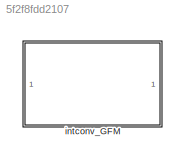
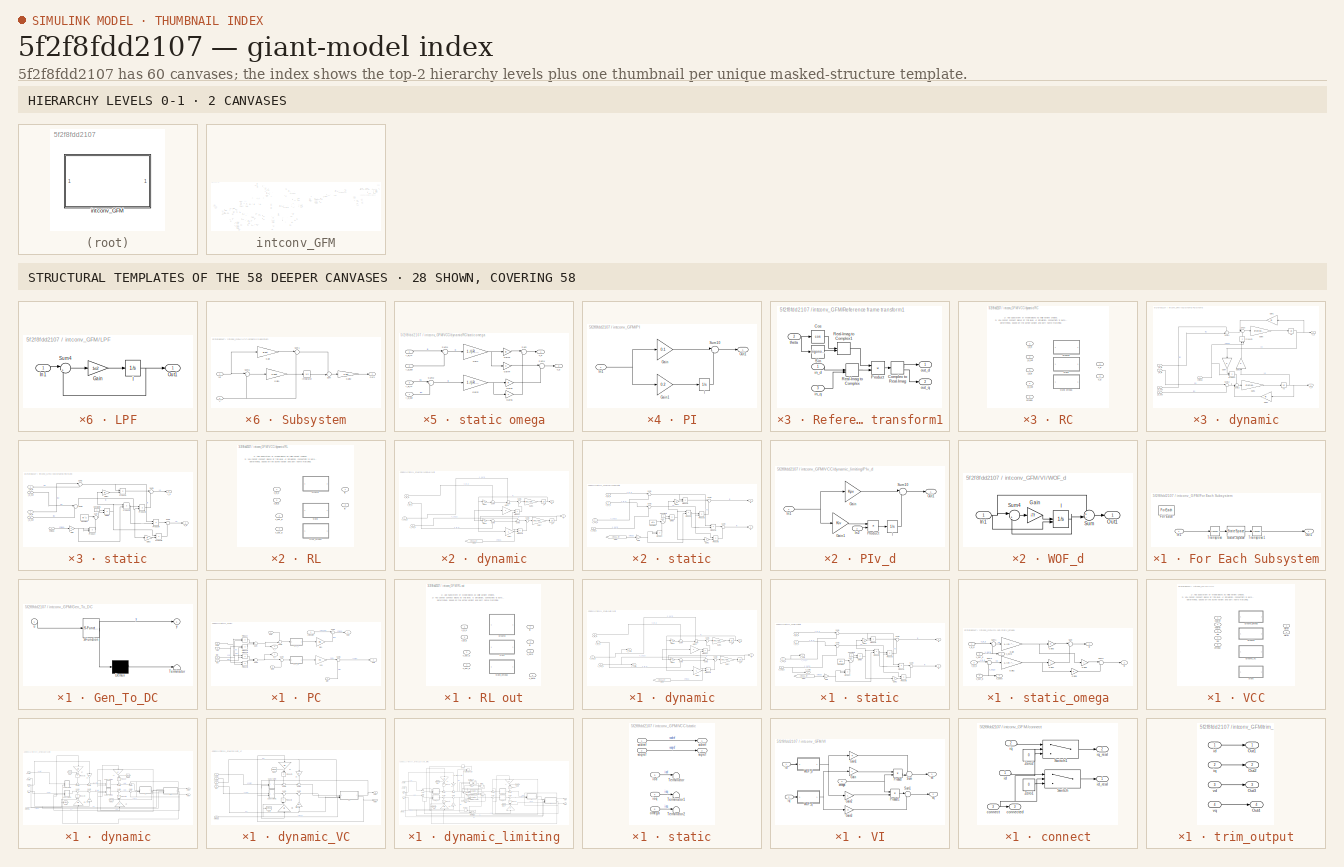
[diagram: thumbnail index - top-2 hierarchy levels (2 canvases) + 28 structural-template representatives of the remaining 58 canvases]
MODEL slx_5f2f8fdd2107
KIND model
CONFIG AbsTol = auto
CONFIG EnableMultiTasking = off
CONFIG FixedStep = auto
CONFIG MaxStep = auto
CONFIG MinStep = auto
CONFIG RelTol = 1e-3
CONFIG SampleTimeConstraint = Unconstrained
CONFIG SolverName = VariableStepAuto
CONFIG StartTime = 0.0
CONFIG StopTime = 10.0
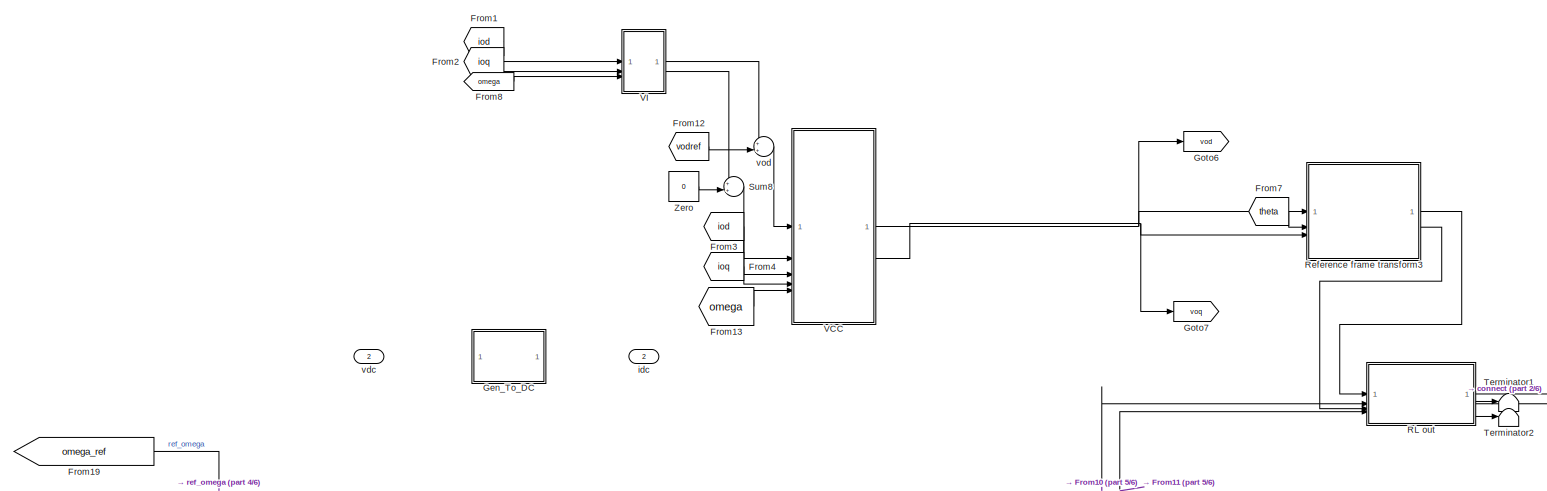
[diagram: intconv_GFM - part 1/6, top center region]
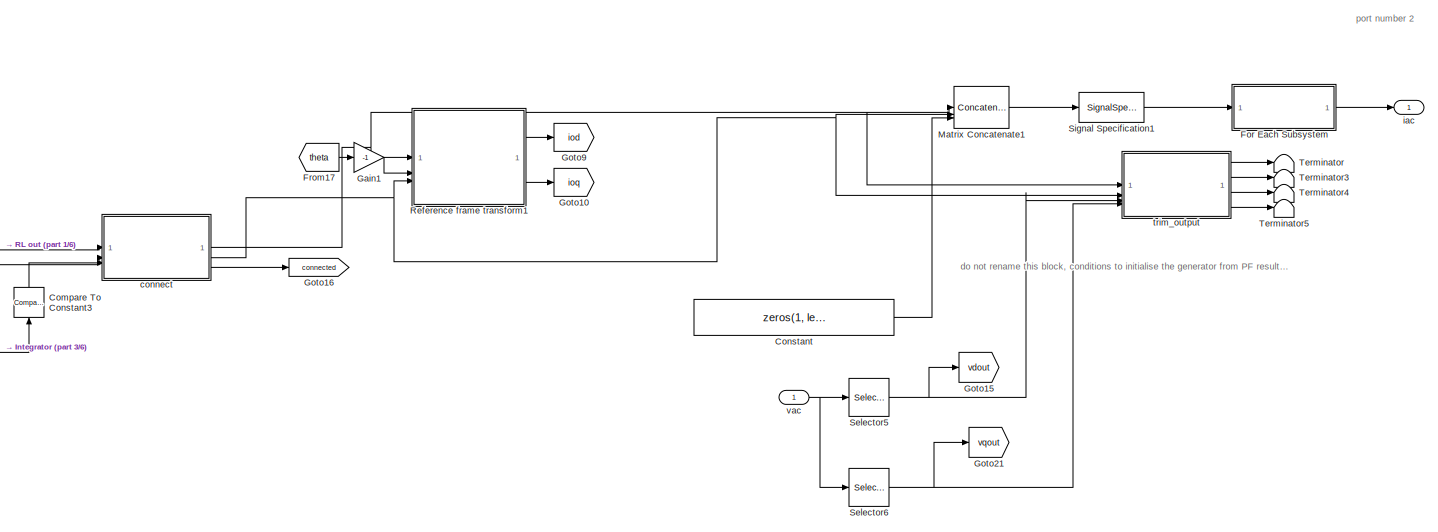
[diagram: intconv_GFM - part 2/6, top right region]
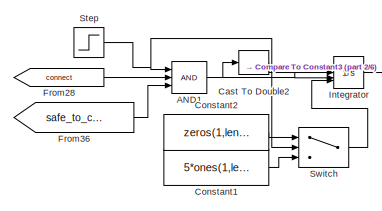
[diagram: intconv_GFM - part 3/6, central region]
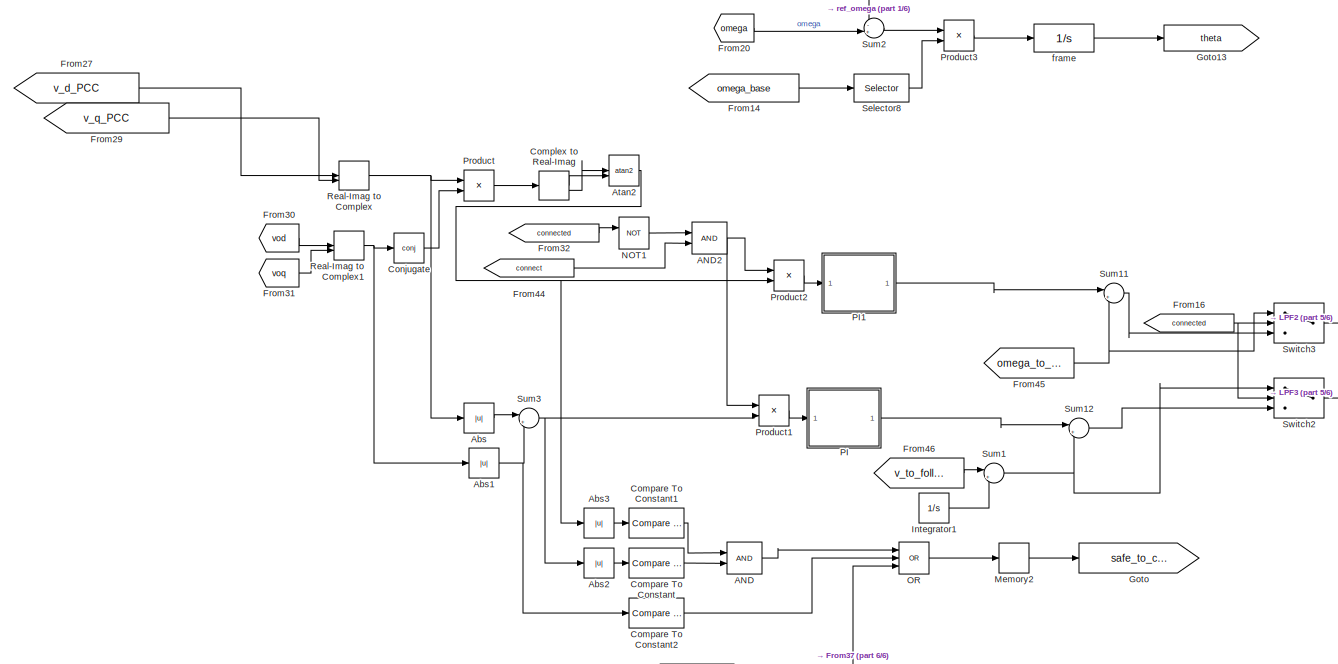
[diagram: intconv_GFM - part 4/6, bottom left region]
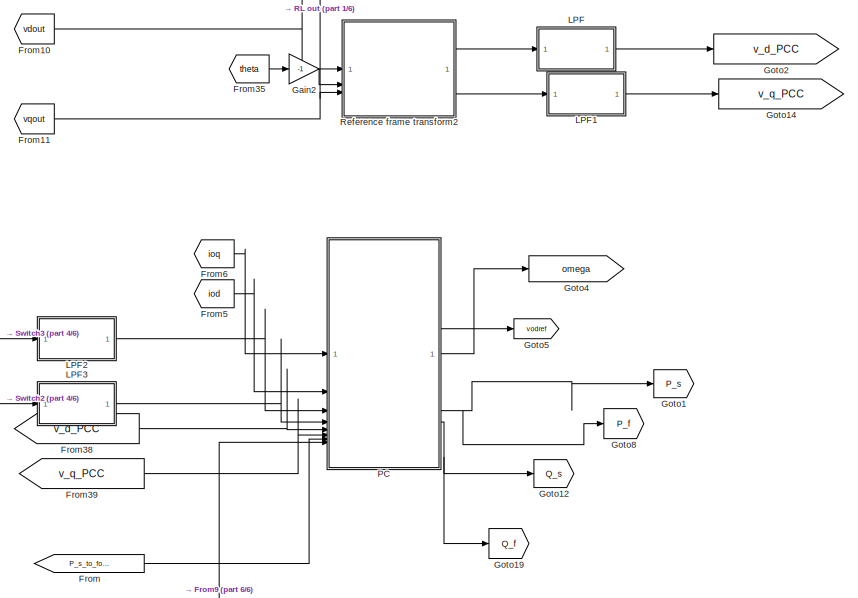
[diagram: intconv_GFM - part 5/6, bottom center region]
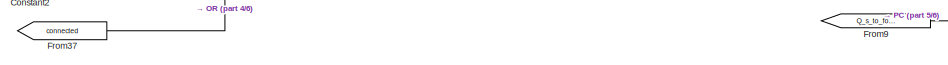
[diagram: intconv_GFM - part 6/6, bottom left region]
BLOCK [SubSystem] intconv_GFM
  Commented = on
BLOCK [Logic] intconv_GFM/AND
  AllPortsSameDT = off
  IconShape = distinctive
  OutDataTypeStr = boolean
BLOCK [Logic] intconv_GFM/AND1
  AllPortsSameDT = off
  IconShape = distinctive
  Inputs = 3
  OutDataTypeStr = boolean
BLOCK [Logic] intconv_GFM/AND2
  AllPortsSameDT = off
  IconShape = distinctive
  OutDataTypeStr = boolean
BLOCK [Abs] intconv_GFM/Abs
  SaturateOnIntegerOverflow = off
  ZeroCross = off
BLOCK [Abs] intconv_GFM/Abs1
  SaturateOnIntegerOverflow = off
  ZeroCross = off
BLOCK [Abs] intconv_GFM/Abs2
  SaturateOnIntegerOverflow = off
  ZeroCross = off
BLOCK [Abs] intconv_GFM/Abs3
  SaturateOnIntegerOverflow = off
  ZeroCross = off
BLOCK [Trigonometry] intconv_GFM/Atan2
  Operator = atan2
BLOCK [DataTypeConversion] intconv_GFM/Cast To Double2
  OutDataTypeStr = double
  RndMeth = Floor
  SaturateOnIntegerOverflow = off
BLOCK [Reference] intconv_GFM/Compare To Constant  REF=simulink/Logic and Bit
Operations/Compare
To Constant
  SourceBlock = simulink/Logic and Bit\nOperations/Compare\nTo Constant
  SourceType = Compare To Constant
BLOCK [Reference] intconv_GFM/Compare To Constant1  REF=simulink/Logic and Bit
Operations/Compare
To Constant
  SourceBlock = simulink/Logic and Bit\nOperations/Compare\nTo Constant
  SourceType = Compare To Constant
BLOCK [Reference] intconv_GFM/Compare To Constant2  REF=simulink/Logic and Bit
Operations/Compare
To Constant
  SourceBlock = simulink/Logic and Bit\nOperations/Compare\nTo Constant
  SourceType = Compare To Constant
BLOCK [Reference] intconv_GFM/Compare To Constant3  REF=simulink/Logic and Bit
Operations/Compare
To Constant
  NameLocation = right
  SourceBlock = simulink/Logic and Bit\nOperations/Compare\nTo Constant
  SourceType = Compare To Constant
BLOCK [ComplexToRealImag] intconv_GFM/Complex to Real-Imag
BLOCK [Math] intconv_GFM/Conjugate
  Operator = conj
  RndMeth = Zero
  SignedPower = on
BLOCK [Constant] intconv_GFM/Constant
  Value = zeros(1, length(block_buses))
  VectorParams1D = off
BLOCK [Constant] intconv_GFM/Constant1
  Value = 5*ones(1,length(block_idx))
  VectorParams1D = off
BLOCK [Constant] intconv_GFM/Constant2
  Value = zeros(1,length(block_idx))
  VectorParams1D = off
BLOCK [SubSystem] intconv_GFM/For Each Subsystem
  TreatAsAtomicUnit = on
BLOCK [ForEach] intconv_GFM/For Each Subsystem/For Each
  DisableCoverage = on
BLOCK [Inport] intconv_GFM/For Each Subsystem/In1
  Partition = on
  PartitionDimension = 1
  PartitionOffset = 0
  PartitionWidth = 1
BLOCK [Outport] intconv_GFM/For Each Subsystem/Out1
  ConcatenationDimension = 1
BLOCK [StateSpace] intconv_GFM/For Each Subsystem/State-Space
  A = []
  B = []
  C = []
  D = block_toM
  InitialCondition = 0
  ParameterTunability = Optimized
BLOCK [Math] intconv_GFM/For Each Subsystem/Transpose
  Operator = transpose
BLOCK [Math] intconv_GFM/For Each Subsystem/Transpose1
  Operator = transpose
BLOCK [From] intconv_GFM/From
  GotoTag = P_s_to_follow
BLOCK [From] intconv_GFM/From1
  GotoTag = iod
BLOCK [From] intconv_GFM/From10
  GotoTag = vdout
BLOCK [From] intconv_GFM/From11
  GotoTag = vqout
BLOCK [From] intconv_GFM/From12
  GotoTag = vodref
BLOCK [From] intconv_GFM/From13
  GotoTag = omega
BLOCK [From] intconv_GFM/From14
  GotoTag = omega_base
  TagVisibility = scoped
BLOCK [From] intconv_GFM/From16
  GotoTag = connected
BLOCK [From] intconv_GFM/From17
  GotoTag = theta
BLOCK [From] intconv_GFM/From19
  GotoTag = omega_ref
  TagVisibility = scoped
BLOCK [From] intconv_GFM/From2
  GotoTag = ioq
BLOCK [From] intconv_GFM/From20
  GotoTag = omega
BLOCK [From] intconv_GFM/From27
  GotoTag = v_d_PCC
BLOCK [From] intconv_GFM/From28
  GotoTag = connect
BLOCK [From] intconv_GFM/From29
  GotoTag = v_q_PCC
BLOCK [From] intconv_GFM/From3
  GotoTag = iod
BLOCK [From] intconv_GFM/From30
  GotoTag = vod
BLOCK [From] intconv_GFM/From31
  GotoTag = voq
BLOCK [From] intconv_GFM/From32
  GotoTag = connected
BLOCK [From] intconv_GFM/From35
  GotoTag = theta
BLOCK [From] intconv_GFM/From36
  GotoTag = safe_to_connect
BLOCK [From] intconv_GFM/From37
  GotoTag = connected
BLOCK [From] intconv_GFM/From38
  GotoTag = v_d_PCC
BLOCK [From] intconv_GFM/From39
  GotoTag = v_q_PCC
BLOCK [From] intconv_GFM/From4
  GotoTag = ioq
BLOCK [From] intconv_GFM/From44
  GotoTag = connect
BLOCK [From] intconv_GFM/From45
  GotoTag = omega_to_follow
BLOCK [From] intconv_GFM/From46
  GotoTag = v_to_follow
BLOCK [From] intconv_GFM/From5
  GotoTag = iod
BLOCK [From] intconv_GFM/From6
  GotoTag = ioq
BLOCK [From] intconv_GFM/From7
  GotoTag = theta
BLOCK [From] intconv_GFM/From8
  GotoTag = omega
BLOCK [From] intconv_GFM/From9
  GotoTag = Q_s_to_follow
BLOCK [Gain] intconv_GFM/Gain1
  Gain = -1
BLOCK [Gain] intconv_GFM/Gain2
  Gain = -1
BLOCK [SubSystem] intconv_GFM/Gen_To_DC
  ErrorFcn = Stateflow.Translate.translate
  LibrarySourceBlock = simulink/User-Defined\nFunctions/MATLAB Function
  PermitHierarchicalResolution = ExplicitOnly
  SFBlockType = MATLAB Function
  TreatAsAtomicUnit = on
BLOCK [Demux] intconv_GFM/Gen_To_DC/ Demux 
  Outputs = 1
BLOCK [S-Function] intconv_GFM/Gen_To_DC/ SFunction 
  EnableBusSupport = off
  FunctionName = sf_sfun
  Parameters = Nbuses_DC,block_buses_DC
  PortCounts = [1 2]
  SFcnIsStateOwnerBlock = off
  SFunctionDeploymentMode = off
  Tag = Stateflow S-Function 6
BLOCK [Terminator] intconv_GFM/Gen_To_DC/ Terminator 
BLOCK [Inport] intconv_GFM/Gen_To_DC/u
BLOCK [Outport] intconv_GFM/Gen_To_DC/y
BLOCK [Goto] intconv_GFM/Goto
  GotoTag = safe_to_connect
BLOCK [Goto] intconv_GFM/Goto1
  GotoTag = P_s
BLOCK [Goto] intconv_GFM/Goto10
  GotoTag = ioq
BLOCK [Goto] intconv_GFM/Goto12
  GotoTag = Q_s
  NameLocation = top
BLOCK [Goto] intconv_GFM/Goto13
  GotoTag = theta
BLOCK [Goto] intconv_GFM/Goto14
  GotoTag = v_q_PCC
BLOCK [Goto] intconv_GFM/Goto15
  GotoTag = vdout
BLOCK [Goto] intconv_GFM/Goto16
  GotoTag = connected
BLOCK [Goto] intconv_GFM/Goto19
  GotoTag = Q_f
BLOCK [Goto] intconv_GFM/Goto2
  GotoTag = v_d_PCC
BLOCK [Goto] intconv_GFM/Goto21
  GotoTag = vqout
BLOCK [Goto] intconv_GFM/Goto4
  GotoTag = omega
BLOCK [Goto] intconv_GFM/Goto5
  GotoTag = vodref
BLOCK [Goto] intconv_GFM/Goto6
  GotoTag = vod
BLOCK [Goto] intconv_GFM/Goto7
  GotoTag = voq
BLOCK [Goto] intconv_GFM/Goto8
  GotoTag = P_f
BLOCK [Goto] intconv_GFM/Goto9
  GotoTag = iod
BLOCK [Integrator] intconv_GFM/Integrator
  ExternalReset = falling
  InitialCondition = Grid_op_VCVSC.States(1,:)
  InitialConditionSource = external
BLOCK [Integrator] intconv_GFM/Integrator1
  InitialCondition = Grid_op_VCVSC.States(2,:)
BLOCK [SubSystem] intconv_GFM/LPF
  Commented = through
BLOCK [Gain] intconv_GFM/LPF/Gain
  Gain = 1e2
BLOCK [Integrator] intconv_GFM/LPF/I
  InitialCondition = Grid_op_VCVSC.op.States(4).x'
BLOCK [Inport] intconv_GFM/LPF/In1
BLOCK [Outport] intconv_GFM/LPF/Out1
BLOCK [Sum] intconv_GFM/LPF/Sum4
  Inputs = |+-
BLOCK [SubSystem] intconv_GFM/LPF1
  Commented = through
BLOCK [Gain] intconv_GFM/LPF1/Gain
  Gain = 1e2
BLOCK [Integrator] intconv_GFM/LPF1/I
  InitialCondition = Grid_op_VCVSC.op.States(5).x'
BLOCK [Inport] intconv_GFM/LPF1/In1
BLOCK [Outport] intconv_GFM/LPF1/Out1
BLOCK [Sum] intconv_GFM/LPF1/Sum4
  Inputs = |+-
BLOCK [SubSystem] intconv_GFM/LPF2
BLOCK [Gain] intconv_GFM/LPF2/Gain
  Gain = 1e2
BLOCK [Integrator] intconv_GFM/LPF2/I
  InitialCondition = Grid_op_VCVSC.States(3,:)
BLOCK [Inport] intconv_GFM/LPF2/In1
BLOCK [Outport] intconv_GFM/LPF2/Out1
BLOCK [Sum] intconv_GFM/LPF2/Sum4
  Inputs = |+-
BLOCK [SubSystem] intconv_GFM/LPF3
BLOCK [Gain] intconv_GFM/LPF3/Gain
  Gain = 1e2
BLOCK [Integrator] intconv_GFM/LPF3/I
  InitialCondition = Grid_op_VCVSC.States(4,:)
BLOCK [Inport] intconv_GFM/LPF3/In1
BLOCK [Outport] intconv_GFM/LPF3/Out1
BLOCK [Sum] intconv_GFM/LPF3/Sum4
  Inputs = |+-
BLOCK [Concatenate] intconv_GFM/Matrix Concatenate1
  Mode = Multidimensional array
  NumInputs = 3
BLOCK [Memory] intconv_GFM/Memory2
  InitialCondition = 1
BLOCK [Logic] intconv_GFM/NOT1
  AllPortsSameDT = off
  IconShape = distinctive
  Operator = NOT
  OutDataTypeStr = boolean
BLOCK [Logic] intconv_GFM/OR
  AllPortsSameDT = off
  IconShape = distinctive
  Inputs = 3
  Operator = OR
  OutDataTypeStr = boolean
BLOCK [SubSystem] intconv_GFM/PC
BLOCK [Inport] intconv_GFM/PC/Eref
  Port = 4
BLOCK [SubSystem] intconv_GFM/PC/LPF_P
BLOCK [Gain] intconv_GFM/PC/LPF_P/Gain
  Gain = iTf
BLOCK [Integrator] intconv_GFM/PC/LPF_P/I
  InitialCondition = Grid_op_VCVSC.States(5,:)
BLOCK [Inport] intconv_GFM/PC/LPF_P/P
BLOCK [Outport] intconv_GFM/PC/LPF_P/P_f
BLOCK [Sum] intconv_GFM/PC/LPF_P/Sum4
  Inputs = |+-
BLOCK [SubSystem] intconv_GFM/PC/LPF_Q
BLOCK [Gain] intconv_GFM/PC/LPF_Q/Gain
  Gain = iTf
BLOCK [Integrator] intconv_GFM/PC/LPF_Q/I
  InitialCondition = Grid_op_VCVSC.States(6,:)
BLOCK [Inport] intconv_GFM/PC/LPF_Q/Q
BLOCK [Outport] intconv_GFM/PC/LPF_Q/Q_f
BLOCK [Sum] intconv_GFM/PC/LPF_Q/Sum4
  Inputs = |+-
BLOCK [Outport] intconv_GFM/PC/Out1
  IconDisplay = Signal name
BLOCK [Outport] intconv_GFM/PC/Out2
  IconDisplay = Signal name
  Port = 2
BLOCK [Outport] intconv_GFM/PC/P_f
  IconDisplay = Signal name
  Port = 3
BLOCK [Product] intconv_GFM/PC/Product
BLOCK [Product] intconv_GFM/PC/Product1
BLOCK [Product] intconv_GFM/PC/Product2
BLOCK [Product] intconv_GFM/PC/Product3
BLOCK [Inport] intconv_GFM/PC/Psp
  Port = 7
BLOCK [Outport] intconv_GFM/PC/Q_f
  IconDisplay = Signal name
  Port = 4
BLOCK [Inport] intconv_GFM/PC/Qsp
  Port = 8
BLOCK [Sum] intconv_GFM/PC/Sum
  Inputs = |++
BLOCK [Sum] intconv_GFM/PC/Sum1
  Inputs = |-+
BLOCK [Sum] intconv_GFM/PC/Sum2
  Inputs = |+-
BLOCK [Sum] intconv_GFM/PC/Sum3
  Inputs = |-+
BLOCK [Sum] intconv_GFM/PC/Sum4
  Inputs = |+-
BLOCK [Sum] intconv_GFM/PC/Sum5
  Inputs = -+|
BLOCK [Inport] intconv_GFM/PC/iodi
  IconDisplay = Signal name
  Port = 2
BLOCK [Inport] intconv_GFM/PC/ioq
  IconDisplay = Signal name
BLOCK [Gain] intconv_GFM/PC/mp1
  Gain = mp
BLOCK [Gain] intconv_GFM/PC/nq1
  Gain = nq
BLOCK [Inport] intconv_GFM/PC/omegaref
  Port = 3
BLOCK [Inport] intconv_GFM/PC/vodi
  IconDisplay = Signal name
  Port = 5
BLOCK [Inport] intconv_GFM/PC/voq
  IconDisplay = Signal name
  Port = 6
BLOCK [SubSystem] intconv_GFM/PI
BLOCK [Gain] intconv_GFM/PI/Gain
  Gain = 0.1
BLOCK [Gain] intconv_GFM/PI/Gain1
  Gain = 0.2
BLOCK [Integrator] intconv_GFM/PI/I
  InitialCondition = Grid_op_VCVSC.States(7,:)
BLOCK [Inport] intconv_GFM/PI/In1
BLOCK [Outport] intconv_GFM/PI/Out1
BLOCK [Sum] intconv_GFM/PI/Sum10
  Inputs = |++
BLOCK [SubSystem] intconv_GFM/PI1
BLOCK [Gain] intconv_GFM/PI1/Gain
  Gain = 0.1/100/pi
BLOCK [Gain] intconv_GFM/PI1/Gain1
  Gain = 0.2/100/pi
BLOCK [Integrator] intconv_GFM/PI1/I
  InitialCondition = Grid_op_VCVSC.States(8,:)
BLOCK [Inport] intconv_GFM/PI1/In1
BLOCK [Outport] intconv_GFM/PI1/Out1
BLOCK [Sum] intconv_GFM/PI1/Sum10
  Inputs = |++
BLOCK [Product] intconv_GFM/Product
BLOCK [Product] intconv_GFM/Product1
  OutDataTypeStr = double
BLOCK [Product] intconv_GFM/Product2
  OutDataTypeStr = double
BLOCK [Product] intconv_GFM/Product3
BLOCK [SubSystem] intconv_GFM/RL out
  LabelModeActiveChoice = dynamic
  Variant = on
  VariantControlMode = label
BLOCK [SubSystem] intconv_GFM/RL out/dynamic
  VariantControl = dynamic
BLOCK [From] intconv_GFM/RL out/dynamic/From
  GotoTag = omega_ref
  TagVisibility = scoped
BLOCK [Gain] intconv_GFM/RL out/dynamic/Gain1
  Gain = L
BLOCK [Gain] intconv_GFM/RL out/dynamic/Gain2
  Gain = R
BLOCK [Gain] intconv_GFM/RL out/dynamic/Gain3
  Gain = R
BLOCK [Gain] intconv_GFM/RL out/dynamic/Gain4
  Gain = L
BLOCK [Gain] intconv_GFM/RL out/dynamic/Gain5
  Gain = invL*omegab
BLOCK [Gain] intconv_GFM/RL out/dynamic/Gain7
  Gain = invL*omegab
BLOCK [Product] intconv_GFM/RL out/dynamic/Product
BLOCK [Product] intconv_GFM/RL out/dynamic/Product1
BLOCK [Sum] intconv_GFM/RL out/dynamic/Sum4
  Inputs = +-|
BLOCK [Sum] intconv_GFM/RL out/dynamic/Sum5
  Inputs = |-+
BLOCK [Sum] intconv_GFM/RL out/dynamic/Sum6
  Inputs = |++
BLOCK [Sum] intconv_GFM/RL out/dynamic/Sum7
  Inputs = -+|
BLOCK [Sum] intconv_GFM/RL out/dynamic/Sum8
  Inputs = |+-
BLOCK [Sum] intconv_GFM/RL out/dynamic/Sum9
  Inputs = -+|
BLOCK [Integrator] intconv_GFM/RL out/dynamic/i_d
  InitialCondition = Grid_op_VCVSC.States(9,:)
BLOCK [Integrator] intconv_GFM/RL out/dynamic/i_q
  InitialCondition = Grid_op_VCVSC.States(10,:)
BLOCK [Outport] intconv_GFM/RL out/dynamic/id
  IconDisplay = Signal name
BLOCK [Outport] intconv_GFM/RL out/dynamic/iq
  IconDisplay = Signal name
  Port = 2
BLOCK [Inport] intconv_GFM/RL out/dynamic/v_in_d
  IconDisplay = Signal name
BLOCK [Inport] intconv_GFM/RL out/dynamic/v_in_q
  IconDisplay = Signal name
  Port = 3
BLOCK [Inport] intconv_GFM/RL out/dynamic/v_out_d
  Port = 2
BLOCK [Inport] intconv_GFM/RL out/dynamic/v_out_q
  Port = 4
BLOCK [Outport] intconv_GFM/RL out/dynamic/v_outd
  Port = 3
BLOCK [Outport] intconv_GFM/RL out/dynamic/v_outq
  Port = 4
BLOCK [Outport] intconv_GFM/RL out/id
BLOCK [Outport] intconv_GFM/RL out/iq
  IconDisplay = Signal name
  Port = 2
BLOCK [SubSystem] intconv_GFM/RL out/static
  VariantControl = static
BLOCK [Constant] intconv_GFM/RL out/static/Constant
  Value = R.^2
BLOCK [Constant] intconv_GFM/RL out/static/Constant1
BLOCK [Product] intconv_GFM/RL out/static/Divide
  Inputs = */
BLOCK [From] intconv_GFM/RL out/static/From
  GotoTag = omega_ref
  TagVisibility = scoped
BLOCK [Gain] intconv_GFM/RL out/static/Gain
  Gain = L
BLOCK [Gain] intconv_GFM/RL out/static/Gain1
  Gain = R
BLOCK [Gain] intconv_GFM/RL out/static/Gain2
  Gain = R
BLOCK [Product] intconv_GFM/RL out/static/Product
BLOCK [Product] intconv_GFM/RL out/static/Product1
BLOCK [Product] intconv_GFM/RL out/static/Product2
BLOCK [Product] intconv_GFM/RL out/static/Product3
BLOCK [Product] intconv_GFM/RL out/static/Product4
BLOCK [Product] intconv_GFM/RL out/static/Product5
BLOCK [Sum] intconv_GFM/RL out/static/Sum
  Inputs = |++
BLOCK [Sum] intconv_GFM/RL out/static/Sum1
  Inputs = |+-
BLOCK [Sum] intconv_GFM/RL out/static/Sum2
  Inputs = |+-
BLOCK [Sum] intconv_GFM/RL out/static/Sum3
  Inputs = |++
BLOCK [Sum] intconv_GFM/RL out/static/Sum4
  Inputs = |-+
BLOCK [Outport] intconv_GFM/RL out/static/id
BLOCK [Outport] intconv_GFM/RL out/static/iq
  IconDisplay = Signal name
  Port = 2
BLOCK [Inport] intconv_GFM/RL out/static/v_in_d
  IconDisplay = Signal name
BLOCK [Inport] intconv_GFM/RL out/static/v_in_q
  IconDisplay = Signal name
  Port = 3
BLOCK [Inport] intconv_GFM/RL out/static/v_out_d
  Port = 2
BLOCK [Inport] intconv_GFM/RL out/static/v_out_q
  Port = 4
BLOCK [Outport] intconv_GFM/RL out/static/v_outd
  Port = 3
BLOCK [Outport] intconv_GFM/RL out/static/v_outq
  Port = 4
BLOCK [SubSystem] intconv_GFM/RL out/static_omega
  VariantControl = static_omega
BLOCK [Gain] intconv_GFM/RL out/static_omega/Gain
  Gain = 1./(R.^2+L.^2)
BLOCK [Gain] intconv_GFM/RL out/static_omega/Gain2
  Gain = 1./(R.^2+L.^2)
BLOCK [Gain] intconv_GFM/RL out/static_omega/Gain3
  Gain = R
BLOCK [Gain] intconv_GFM/RL out/static_omega/Gain4
  Gain = L
BLOCK [Gain] intconv_GFM/RL out/static_omega/Gain5
  Gain = L
BLOCK [Gain] intconv_GFM/RL out/static_omega/Gain6
  Gain = R
BLOCK [Sum] intconv_GFM/RL out/static_omega/Sum
  Inputs = |++
BLOCK [Sum] intconv_GFM/RL out/static_omega/Sum1
  Inputs = |+-
BLOCK [Sum] intconv_GFM/RL out/static_omega/Sum2
  Inputs = |+-
BLOCK [Sum] intconv_GFM/RL out/static_omega/Sum3
  Inputs = |-+
BLOCK [Outport] intconv_GFM/RL out/static_omega/id
BLOCK [Outport] intconv_GFM/RL out/static_omega/iq
  IconDisplay = Signal name
  Port = 2
BLOCK [Inport] intconv_GFM/RL out/static_omega/v_in_d
  IconDisplay = Signal name
BLOCK [Inport] intconv_GFM/RL out/static_omega/v_in_q
  IconDisplay = Signal name
  Port = 3
BLOCK [Inport] intconv_GFM/RL out/static_omega/v_out_d
  Port = 2
BLOCK [Inport] intconv_GFM/RL out/static_omega/v_out_q
  Port = 4
BLOCK [Outport] intconv_GFM/RL out/static_omega/v_outd
  Port = 3
BLOCK [Outport] intconv_GFM/RL out/static_omega/v_outq
  Port = 4
BLOCK [Inport] intconv_GFM/RL out/v_in_d
  IconDisplay = Signal name
BLOCK [Inport] intconv_GFM/RL out/v_in_q
  IconDisplay = Signal name
  Port = 3
BLOCK [Inport] intconv_GFM/RL out/v_out_d
  Port = 2
BLOCK [Inport] intconv_GFM/RL out/v_out_q
  Port = 4
BLOCK [Outport] intconv_GFM/RL out/v_outd
  Port = 3
BLOCK [Outport] intconv_GFM/RL out/v_outq
  Port = 4
BLOCK [RealImagToComplex] intconv_GFM/Real-Imag to Complex
BLOCK [RealImagToComplex] intconv_GFM/Real-Imag to Complex1
BLOCK [SubSystem] intconv_GFM/Reference frame transform1
BLOCK [ComplexToRealImag] intconv_GFM/Reference frame transform1/Complex to Real-Imag
BLOCK [Trigonometry] intconv_GFM/Reference frame transform1/Cos
  Operator = cos
  SCDEnableBlockLinearizationSpecification = on
BLOCK [Product] intconv_GFM/Reference frame transform1/Product
BLOCK [RealImagToComplex] intconv_GFM/Reference frame transform1/Real-Imag to Complex
BLOCK [RealImagToComplex] intconv_GFM/Reference frame transform1/Real-Imag to Complex1
BLOCK [Trigonometry] intconv_GFM/Reference frame transform1/Sin
  SCDEnableBlockLinearizationSpecification = on
BLOCK [Inport] intconv_GFM/Reference frame transform1/in_d
BLOCK [Inport] intconv_GFM/Reference frame transform1/in_q
  Port = 3
BLOCK [Outport] intconv_GFM/Reference frame transform1/out_d
BLOCK [Outport] intconv_GFM/Reference frame transform1/out_q
  Port = 2
BLOCK [Inport] intconv_GFM/Reference frame transform1/theta
  Port = 2
BLOCK [SubSystem] intconv_GFM/Reference frame transform2
BLOCK [ComplexToRealImag] intconv_GFM/Reference frame transform2/Complex to Real-Imag
BLOCK [Trigonometry] intconv_GFM/Reference frame transform2/Cos
  Operator = cos
  SCDEnableBlockLinearizationSpecification = on
BLOCK [Product] intconv_GFM/Reference frame transform2/Product
BLOCK [RealImagToComplex] intconv_GFM/Reference frame transform2/Real-Imag to Complex
BLOCK [RealImagToComplex] intconv_GFM/Reference frame transform2/Real-Imag to Complex1
BLOCK [Trigonometry] intconv_GFM/Reference frame transform2/Sin
  SCDEnableBlockLinearizationSpecification = on
BLOCK [Inport] intconv_GFM/Reference frame transform2/in_d
BLOCK [Inport] intconv_GFM/Reference frame transform2/in_q
  Port = 3
BLOCK [Outport] intconv_GFM/Reference frame transform2/out_d
BLOCK [Outport] intconv_GFM/Reference frame transform2/out_q
  Port = 2
BLOCK [Inport] intconv_GFM/Reference frame transform2/theta
  Port = 2
BLOCK [SubSystem] intconv_GFM/Reference frame transform3
BLOCK [ComplexToRealImag] intconv_GFM/Reference frame transform3/Complex to Real-Imag
BLOCK [Trigonometry] intconv_GFM/Reference frame transform3/Cos
  Operator = cos
  SCDEnableBlockLinearizationSpecification = on
BLOCK [Product] intconv_GFM/Reference frame transform3/Product
BLOCK [RealImagToComplex] intconv_GFM/Reference frame transform3/Real-Imag to Complex
BLOCK [RealImagToComplex] intconv_GFM/Reference frame transform3/Real-Imag to Complex1
BLOCK [Trigonometry] intconv_GFM/Reference frame transform3/Sin
  SCDEnableBlockLinearizationSpecification = on
BLOCK [Inport] intconv_GFM/Reference frame transform3/in_d
BLOCK [Inport] intconv_GFM/Reference frame transform3/in_q
  Port = 3
BLOCK [Outport] intconv_GFM/Reference frame transform3/out_d
BLOCK [Outport] intconv_GFM/Reference frame transform3/out_q
  Port = 2
BLOCK [Inport] intconv_GFM/Reference frame transform3/theta
  Port = 2
BLOCK [Selector] intconv_GFM/Selector5
  IndexOptions = Index vector (dialog),Index vector (dialog)
  Indices = 1,block_buses
  InputPortWidth = 3
  NumberOfDimensions = 2
  OutputSizes = 1,1
BLOCK [Selector] intconv_GFM/Selector6
  IndexOptions = Index vector (dialog),Index vector (dialog)
  Indices = 2,block_buses
  InputPortWidth = 3
  NumberOfDimensions = 2
  OutputSizes = 1,1
BLOCK [Selector] intconv_GFM/Selector8
  IndexOptions = Index vector (dialog)
  Indices = block_fref
  InputPortWidth = length(fref.ref_units)
  OutputSizes = 1
BLOCK [SignalSpecification] intconv_GFM/Signal Specification1
  Dimensions = [3 length(block_buses)]
BLOCK [Step] intconv_GFM/Step
  SampleTime = 0
  Time = 0.01
  VectorParams1D = off
  ZeroCross = off
BLOCK [Sum] intconv_GFM/Sum1
  Inputs = |++
BLOCK [Sum] intconv_GFM/Sum11
  Inputs = |++
BLOCK [Sum] intconv_GFM/Sum12
  Inputs = |++
BLOCK [Sum] intconv_GFM/Sum2
  Inputs = -+|
BLOCK [Sum] intconv_GFM/Sum3
  Inputs = |+-
BLOCK [Sum] intconv_GFM/Sum8
  Inputs = ++|
BLOCK [Switch] intconv_GFM/Switch
  Criteria = u2 > Threshold
  InputSameDT = off
  SaturateOnIntegerOverflow = off
BLOCK [Switch] intconv_GFM/Switch2
  Criteria = u2 > Threshold
  InputSameDT = off
  SaturateOnIntegerOverflow = off
BLOCK [Switch] intconv_GFM/Switch3
  Criteria = u2 > Threshold
  InputSameDT = off
  SaturateOnIntegerOverflow = off
BLOCK [Terminator] intconv_GFM/Terminator
BLOCK [Terminator] intconv_GFM/Terminator1
BLOCK [Terminator] intconv_GFM/Terminator2
BLOCK [Terminator] intconv_GFM/Terminator3
BLOCK [Terminator] intconv_GFM/Terminator4
BLOCK [Terminator] intconv_GFM/Terminator5
BLOCK [SubSystem] intconv_GFM/VCC
  LabelModeActiveChoice = static
  Variant = on
  VariantControlMode = label
BLOCK [SubSystem] intconv_GFM/VCC/dynamic
  VariantControl = dynamic
BLOCK [Gain] intconv_GFM/VCC/dynamic/Cf
  Gain = Cfi
  NameLocation = left
BLOCK [Gain] intconv_GFM/VCC/dynamic/Cf 1
  Gain = Cfi
  NameLocation = left
BLOCK [Gain] intconv_GFM/VCC/dynamic/Fi
  Gain = Fi
  NameLocation = right
BLOCK [Gain] intconv_GFM/VCC/dynamic/Fi2
  Gain = Fi
  NameLocation = left
BLOCK [From] intconv_GFM/VCC/dynamic/From
  GotoTag = omega
BLOCK [From] intconv_GFM/VCC/dynamic/From1
  GotoTag = omega
BLOCK [From] intconv_GFM/VCC/dynamic/From2
  GotoTag = omega
  NameLocation = top
BLOCK [Goto] intconv_GFM/VCC/dynamic/Goto
  GotoTag = omega
BLOCK [Gain] intconv_GFM/VCC/dynamic/Lf 
  Gain = Lf
  NameLocation = left
BLOCK [Gain] intconv_GFM/VCC/dynamic/Lf1
  Gain = Lf
  NameLocation = right
BLOCK [Product] intconv_GFM/VCC/dynamic/Product
  NameLocation = left
BLOCK [Product] intconv_GFM/VCC/dynamic/Product1
  NameLocation = left
BLOCK [Product] intconv_GFM/VCC/dynamic/Product2
  NameLocation = right
BLOCK [Product] intconv_GFM/VCC/dynamic/Product3
  NameLocation = right
BLOCK [SubSystem] intconv_GFM/VCC/dynamic/RC
  LabelModeActiveChoice = dynamic
  Variant = on
  VariantControlMode = label
BLOCK [SubSystem] intconv_GFM/VCC/dynamic/RC/dynamic
  VariantControl = dynamic
BLOCK [Gain] intconv_GFM/VCC/dynamic/RC/dynamic/Gain1
  Gain = iR
  NameLocation = top
BLOCK [Gain] intconv_GFM/VCC/dynamic/RC/dynamic/Gain2
  Gain = iR
  NameLocation = top
BLOCK [Gain] intconv_GFM/VCC/dynamic/RC/dynamic/Gain3
  Gain = C
  NameLocation = right
BLOCK [Gain] intconv_GFM/VCC/dynamic/RC/dynamic/Gain4
  Gain = C
  NameLocation = left
BLOCK [Gain] intconv_GFM/VCC/dynamic/RC/dynamic/Gain5
  Gain = iC*omegab
BLOCK [Gain] intconv_GFM/VCC/dynamic/RC/dynamic/Gain6
  Gain = iC*omegab
BLOCK [Product] intconv_GFM/VCC/dynamic/RC/dynamic/Product
BLOCK [Product] intconv_GFM/VCC/dynamic/RC/dynamic/Product1
  NameLocation = right
BLOCK [Sum] intconv_GFM/VCC/dynamic/RC/dynamic/Sum10
  Inputs = |-++
BLOCK [Sum] intconv_GFM/VCC/dynamic/RC/dynamic/Sum11
  Inputs = -+|
BLOCK [Sum] intconv_GFM/VCC/dynamic/RC/dynamic/Sum12
  Inputs = |+-
BLOCK [Sum] intconv_GFM/VCC/dynamic/RC/dynamic/Sum13
  Inputs = -+-|
BLOCK [Inport] intconv_GFM/VCC/dynamic/RC/dynamic/i_d_in
  Port = 2
BLOCK [Inport] intconv_GFM/VCC/dynamic/RC/dynamic/i_d_out
  Port = 3
BLOCK [Inport] intconv_GFM/VCC/dynamic/RC/dynamic/i_q_in
  Port = 4
BLOCK [Inport] intconv_GFM/VCC/dynamic/RC/dynamic/i_q_out
  Port = 5
BLOCK [Inport] intconv_GFM/VCC/dynamic/RC/dynamic/omega
BLOCK [Outport] intconv_GFM/VCC/dynamic/RC/dynamic/v_d
BLOCK [Outport] intconv_GFM/VCC/dynamic/RC/dynamic/v_q
  Port = 2
BLOCK [Integrator] intconv_GFM/VCC/dynamic/RC/dynamic/vd
  InitialCondition = Grid_op_VCVSC.States(11,:)
BLOCK [Integrator] intconv_GFM/VCC/dynamic/RC/dynamic/vq
  InitialCondition = Grid_op_VCVSC.States(12,:)
BLOCK [Inport] intconv_GFM/VCC/dynamic/RC/i_d_in
BLOCK [Inport] intconv_GFM/VCC/dynamic/RC/i_d_out
  Port = 2
BLOCK [Inport] intconv_GFM/VCC/dynamic/RC/i_q_in
  Port = 3
BLOCK [Inport] intconv_GFM/VCC/dynamic/RC/i_q_out
  Port = 4
BLOCK [Inport] intconv_GFM/VCC/dynamic/RC/omega
  Port = 5
BLOCK [SubSystem] intconv_GFM/VCC/dynamic/RC/static
  VariantControl = static
BLOCK [SubSystem] intconv_GFM/VCC/dynamic/RC/static omega
  VariantControl = static omega
BLOCK [Gain] intconv_GFM/VCC/dynamic/RC/static omega/Gain
  Gain = 1./(iR.^2+C.^2)
BLOCK [Gain] intconv_GFM/VCC/dynamic/RC/static omega/Gain2
  Gain = 1./(iR.^2+C.^2)
BLOCK [Gain] intconv_GFM/VCC/dynamic/RC/static omega/Gain3
  Gain = iR
BLOCK [Gain] intconv_GFM/VCC/dynamic/RC/static omega/Gain4
  Gain = C
BLOCK [Gain] intconv_GFM/VCC/dynamic/RC/static omega/Gain5
  Gain = iR
BLOCK [Gain] intconv_GFM/VCC/dynamic/RC/static omega/Gain6
  Gain = C
BLOCK [Sum] intconv_GFM/VCC/dynamic/RC/static omega/Sum
  Inputs = |++
BLOCK [Sum] intconv_GFM/VCC/dynamic/RC/static omega/Sum1
  Inputs = |+-
BLOCK [Sum] intconv_GFM/VCC/dynamic/RC/static omega/Sum2
  Inputs = |+-
BLOCK [Sum] intconv_GFM/VCC/dynamic/RC/static omega/Sum4
  Inputs = |-+
BLOCK [Inport] intconv_GFM/VCC/dynamic/RC/static omega/i_d_in
BLOCK [Inport] intconv_GFM/VCC/dynamic/RC/static omega/i_d_out
  Port = 2
BLOCK [Inport] intconv_GFM/VCC/dynamic/RC/static omega/i_q_in
  Port = 3
BLOCK [Inport] intconv_GFM/VCC/dynamic/RC/static omega/i_q_out
  Port = 4
BLOCK [Outport] intconv_GFM/VCC/dynamic/RC/static omega/v_d
BLOCK [Outport] intconv_GFM/VCC/dynamic/RC/static omega/v_q
  Port = 2
BLOCK [Constant] intconv_GFM/VCC/dynamic/RC/static/Constant
  Value = iR.^2
BLOCK [Constant] intconv_GFM/VCC/dynamic/RC/static/Constant1
BLOCK [Product] intconv_GFM/VCC/dynamic/RC/static/Divide
  Inputs = */
BLOCK [Gain] intconv_GFM/VCC/dynamic/RC/static/Gain
  Gain = C
BLOCK [Gain] intconv_GFM/VCC/dynamic/RC/static/Gain1
  Gain = iR
BLOCK [Gain] intconv_GFM/VCC/dynamic/RC/static/Gain2
  Gain = iR
BLOCK [Product] intconv_GFM/VCC/dynamic/RC/static/Product
BLOCK [Product] intconv_GFM/VCC/dynamic/RC/static/Product1
BLOCK [Product] intconv_GFM/VCC/dynamic/RC/static/Product2
BLOCK [Product] intconv_GFM/VCC/dynamic/RC/static/Product3
BLOCK [Product] intconv_GFM/VCC/dynamic/RC/static/Product4
BLOCK [Product] intconv_GFM/VCC/dynamic/RC/static/Product5
BLOCK [Sum] intconv_GFM/VCC/dynamic/RC/static/Sum
  Inputs = |++
BLOCK [Sum] intconv_GFM/VCC/dynamic/RC/static/Sum1
  Inputs = |-+
BLOCK [Sum] intconv_GFM/VCC/dynamic/RC/static/Sum2
  Inputs = |+-
BLOCK [Sum] intconv_GFM/VCC/dynamic/RC/static/Sum3
  Inputs = |++
BLOCK [Sum] intconv_GFM/VCC/dynamic/RC/static/Sum4
  Inputs = |-+
BLOCK [Inport] intconv_GFM/VCC/dynamic/RC/static/i_d_in
  Port = 2
BLOCK [Inport] intconv_GFM/VCC/dynamic/RC/static/i_d_out
  Port = 3
BLOCK [Inport] intconv_GFM/VCC/dynamic/RC/static/i_q_in
  Port = 4
BLOCK [Inport] intconv_GFM/VCC/dynamic/RC/static/i_q_out
  Port = 5
BLOCK [Inport] intconv_GFM/VCC/dynamic/RC/static/omega
BLOCK [Outport] intconv_GFM/VCC/dynamic/RC/static/v_d
BLOCK [Outport] intconv_GFM/VCC/dynamic/RC/static/v_q
  Port = 2
BLOCK [Outport] intconv_GFM/VCC/dynamic/RC/v_d
BLOCK [Outport] intconv_GFM/VCC/dynamic/RC/v_q
  Port = 2
BLOCK [SubSystem] intconv_GFM/VCC/dynamic/RL
  LabelModeActiveChoice = dynamic
  Variant = on
  VariantControlMode = label
BLOCK [SubSystem] intconv_GFM/VCC/dynamic/RL/dynamic
  PortSchema = {"entries":[{"content":{"sides":[{"content":{"connectorIds":["In1"]},"type":"ConnectorPlacement.EquallySpacedRectSide","uuid":"63966e24-f9e7-4b2d-b456-7f4ea5e3f230"},{"content":{"connectorIds":["In2","In3","In4","Out1","Out2"],"side":"RIGHT"},"type":"ConnectorPlacement.EquallySpacedRectSide","uuid":"ded6ef04-52fd-47df-8e49-cf16b827098d"},{"content":{"connectorIds":[],"side":"TOP"},"type":"Connecto...<+265ch>
  VariantControl = dynamic
BLOCK [From] intconv_GFM/VCC/dynamic/RL/dynamic/From
  GotoTag = omega_ref
  TagVisibility = scoped
BLOCK [Gain] intconv_GFM/VCC/dynamic/RL/dynamic/Gain1
  Gain = L
BLOCK [Gain] intconv_GFM/VCC/dynamic/RL/dynamic/Gain2
  Gain = R
BLOCK [Gain] intconv_GFM/VCC/dynamic/RL/dynamic/Gain3
  Gain = R
BLOCK [Gain] intconv_GFM/VCC/dynamic/RL/dynamic/Gain4
  Gain = L
BLOCK [Gain] intconv_GFM/VCC/dynamic/RL/dynamic/Gain5
  Gain = invL*omegab
BLOCK [Gain] intconv_GFM/VCC/dynamic/RL/dynamic/Gain7
  Gain = invL*omegab
BLOCK [Product] intconv_GFM/VCC/dynamic/RL/dynamic/Product
BLOCK [Product] intconv_GFM/VCC/dynamic/RL/dynamic/Product1
BLOCK [Sum] intconv_GFM/VCC/dynamic/RL/dynamic/Sum4
  Inputs = +-|
BLOCK [Sum] intconv_GFM/VCC/dynamic/RL/dynamic/Sum5
  Inputs = |-+
BLOCK [Sum] intconv_GFM/VCC/dynamic/RL/dynamic/Sum6
  Inputs = |++
BLOCK [Sum] intconv_GFM/VCC/dynamic/RL/dynamic/Sum7
  Inputs = -+|
BLOCK [Sum] intconv_GFM/VCC/dynamic/RL/dynamic/Sum8
  Inputs = |+-
BLOCK [Sum] intconv_GFM/VCC/dynamic/RL/dynamic/Sum9
  Inputs = -+|
BLOCK [Integrator] intconv_GFM/VCC/dynamic/RL/dynamic/i_d
  InitialCondition = Grid_op_VCVSC.States(13,:)
BLOCK [Integrator] intconv_GFM/VCC/dynamic/RL/dynamic/i_q
  InitialCondition = Grid_op_VCVSC.States(14,:)
BLOCK [Outport] intconv_GFM/VCC/dynamic/RL/dynamic/id
  IconDisplay = Signal name
BLOCK [Outport] intconv_GFM/VCC/dynamic/RL/dynamic/iq
  IconDisplay = Signal name
  Port = 2
BLOCK [Inport] intconv_GFM/VCC/dynamic/RL/dynamic/v_in_d
  IconDisplay = Signal name
BLOCK [Inport] intconv_GFM/VCC/dynamic/RL/dynamic/v_in_q
  IconDisplay = Signal name
  Port = 3
BLOCK [Inport] intconv_GFM/VCC/dynamic/RL/dynamic/v_out_d
  Port = 2
BLOCK [Inport] intconv_GFM/VCC/dynamic/RL/dynamic/v_out_q
  Port = 4
BLOCK [Outport] intconv_GFM/VCC/dynamic/RL/id
BLOCK [Outport] intconv_GFM/VCC/dynamic/RL/iq
  IconDisplay = Signal name
  Port = 2
BLOCK [SubSystem] intconv_GFM/VCC/dynamic/RL/static
  VariantControl = static
BLOCK [Constant] intconv_GFM/VCC/dynamic/RL/static/Constant
  Value = R.^2
BLOCK [Constant] intconv_GFM/VCC/dynamic/RL/static/Constant1
BLOCK [Product] intconv_GFM/VCC/dynamic/RL/static/Divide
  Inputs = */
BLOCK [From] intconv_GFM/VCC/dynamic/RL/static/From
  GotoTag = omega_ref
  TagVisibility = scoped
BLOCK [Gain] intconv_GFM/VCC/dynamic/RL/static/Gain
  Gain = L
BLOCK [Gain] intconv_GFM/VCC/dynamic/RL/static/Gain1
  Gain = R
BLOCK [Gain] intconv_GFM/VCC/dynamic/RL/static/Gain2
  Gain = R
BLOCK [Product] intconv_GFM/VCC/dynamic/RL/static/Product
BLOCK [Product] intconv_GFM/VCC/dynamic/RL/static/Product1
BLOCK [Product] intconv_GFM/VCC/dynamic/RL/static/Product2
BLOCK [Product] intconv_GFM/VCC/dynamic/RL/static/Product3
BLOCK [Product] intconv_GFM/VCC/dynamic/RL/static/Product4
BLOCK [Product] intconv_GFM/VCC/dynamic/RL/static/Product5
BLOCK [Sum] intconv_GFM/VCC/dynamic/RL/static/Sum
  Inputs = |++
BLOCK [Sum] intconv_GFM/VCC/dynamic/RL/static/Sum1
  Inputs = |+-
BLOCK [Sum] intconv_GFM/VCC/dynamic/RL/static/Sum2
  Inputs = |+-
BLOCK [Sum] intconv_GFM/VCC/dynamic/RL/static/Sum3
  Inputs = |++
BLOCK [Sum] intconv_GFM/VCC/dynamic/RL/static/Sum4
  Inputs = |-+
BLOCK [Outport] intconv_GFM/VCC/dynamic/RL/static/id
BLOCK [Outport] intconv_GFM/VCC/dynamic/RL/static/iq
  IconDisplay = Signal name
  Port = 2
BLOCK [Inport] intconv_GFM/VCC/dynamic/RL/static/v_in_d
  IconDisplay = Signal name
BLOCK [Inport] intconv_GFM/VCC/dynamic/RL/static/v_in_q
  IconDisplay = Signal name
  Port = 3
BLOCK [Inport] intconv_GFM/VCC/dynamic/RL/static/v_out_d
  Port = 2
BLOCK [Inport] intconv_GFM/VCC/dynamic/RL/static/v_out_q
  Port = 4
BLOCK [SubSystem] intconv_GFM/VCC/dynamic/RL/static_omega
  VariantControl = static_omega
BLOCK [Gain] intconv_GFM/VCC/dynamic/RL/static_omega/Gain
  Gain = 1./(R.^2+L.^2)
BLOCK [Gain] intconv_GFM/VCC/dynamic/RL/static_omega/Gain2
  Gain = 1./(R.^2+L.^2)
BLOCK [Gain] intconv_GFM/VCC/dynamic/RL/static_omega/Gain3
  Gain = R
BLOCK [Gain] intconv_GFM/VCC/dynamic/RL/static_omega/Gain4
  Gain = L
BLOCK [Gain] intconv_GFM/VCC/dynamic/RL/static_omega/Gain5
  Gain = L
BLOCK [Gain] intconv_GFM/VCC/dynamic/RL/static_omega/Gain6
  Gain = R
BLOCK [Sum] intconv_GFM/VCC/dynamic/RL/static_omega/Sum
  Inputs = |++
BLOCK [Sum] intconv_GFM/VCC/dynamic/RL/static_omega/Sum1
  Inputs = |+-
BLOCK [Sum] intconv_GFM/VCC/dynamic/RL/static_omega/Sum2
  Inputs = |+-
BLOCK [Sum] intconv_GFM/VCC/dynamic/RL/static_omega/Sum3
  Inputs = |-+
BLOCK [Outport] intconv_GFM/VCC/dynamic/RL/static_omega/id
BLOCK [Outport] intconv_GFM/VCC/dynamic/RL/static_omega/iq
  IconDisplay = Signal name
  Port = 2
BLOCK [Inport] intconv_GFM/VCC/dynamic/RL/static_omega/v_in_d
  IconDisplay = Signal name
BLOCK [Inport] intconv_GFM/VCC/dynamic/RL/static_omega/v_in_q
  IconDisplay = Signal name
  Port = 3
BLOCK [Inport] intconv_GFM/VCC/dynamic/RL/static_omega/v_out_d
  Port = 2
BLOCK [Inport] intconv_GFM/VCC/dynamic/RL/static_omega/v_out_q
  Port = 4
BLOCK [Inport] intconv_GFM/VCC/dynamic/RL/v_in_d
  IconDisplay = Signal name
BLOCK [Inport] intconv_GFM/VCC/dynamic/RL/v_in_q
  IconDisplay = Signal name
  Port = 3
BLOCK [Inport] intconv_GFM/VCC/dynamic/RL/v_out_d
  Port = 2
BLOCK [Inport] intconv_GFM/VCC/dynamic/RL/v_out_q
  Port = 4
BLOCK [SubSystem] intconv_GFM/VCC/dynamic/Subsystem
BLOCK [Gain] intconv_GFM/VCC/dynamic/Subsystem/Gain
  Gain = Bext
BLOCK [Gain] intconv_GFM/VCC/dynamic/Subsystem/Gain1
  Gain = 1/Text
BLOCK [Gain] intconv_GFM/VCC/dynamic/Subsystem/Gain2
  Gain = Kext
BLOCK [Integrator] intconv_GFM/VCC/dynamic/Subsystem/Integrator
  InitialCondition = Grid_op_VCVSC.States(15,:)
BLOCK [Outport] intconv_GFM/VCC/dynamic/Subsystem/Out1
BLOCK [Sum] intconv_GFM/VCC/dynamic/Subsystem/Sum
  Inputs = ++|
BLOCK [Sum] intconv_GFM/VCC/dynamic/Subsystem/Sum1
  Inputs = |+-
BLOCK [Sum] intconv_GFM/VCC/dynamic/Subsystem/Sum6
  Inputs = |+-
BLOCK [Inport] intconv_GFM/VCC/dynamic/Subsystem/ref
BLOCK [Inport] intconv_GFM/VCC/dynamic/Subsystem/y
  NameLocation = top
  Port = 2
BLOCK [SubSystem] intconv_GFM/VCC/dynamic/Subsystem1
BLOCK [Gain] intconv_GFM/VCC/dynamic/Subsystem1/Gain
  Gain = Bext
BLOCK [Gain] intconv_GFM/VCC/dynamic/Subsystem1/Gain1
  Gain = 1/Text
BLOCK [Gain] intconv_GFM/VCC/dynamic/Subsystem1/Gain2
  Gain = Kext
BLOCK [Integrator] intconv_GFM/VCC/dynamic/Subsystem1/Integrator
  InitialCondition = Grid_op_VCVSC.States(16,:)
BLOCK [Outport] intconv_GFM/VCC/dynamic/Subsystem1/Out1
BLOCK [Sum] intconv_GFM/VCC/dynamic/Subsystem1/Sum
  Inputs = ++|
BLOCK [Sum] intconv_GFM/VCC/dynamic/Subsystem1/Sum1
  Inputs = |+-
BLOCK [Sum] intconv_GFM/VCC/dynamic/Subsystem1/Sum6
  Inputs = |+-
BLOCK [Inport] intconv_GFM/VCC/dynamic/Subsystem1/ref
BLOCK [Inport] intconv_GFM/VCC/dynamic/Subsystem1/y
  NameLocation = top
  Port = 2
BLOCK [SubSystem] intconv_GFM/VCC/dynamic/Subsystem2
BLOCK [Gain] intconv_GFM/VCC/dynamic/Subsystem2/Gain
  Gain = Bint
BLOCK [Gain] intconv_GFM/VCC/dynamic/Subsystem2/Gain1
  Gain = 1/Tint
BLOCK [Gain] intconv_GFM/VCC/dynamic/Subsystem2/Gain2
  Gain = Kint
BLOCK [Integrator] intconv_GFM/VCC/dynamic/Subsystem2/Integrator
  InitialCondition = Grid_op_VCVSC.States(17,:)
BLOCK [Outport] intconv_GFM/VCC/dynamic/Subsystem2/Out1
BLOCK [Sum] intconv_GFM/VCC/dynamic/Subsystem2/Sum
  Inputs = ++|
BLOCK [Sum] intconv_GFM/VCC/dynamic/Subsystem2/Sum1
  Inputs = |+-
BLOCK [Sum] intconv_GFM/VCC/dynamic/Subsystem2/Sum6
  Inputs = |+-
BLOCK [Inport] intconv_GFM/VCC/dynamic/Subsystem2/ref
BLOCK [Inport] intconv_GFM/VCC/dynamic/Subsystem2/y
  NameLocation = top
  Port = 2
BLOCK [SubSystem] intconv_GFM/VCC/dynamic/Subsystem3
BLOCK [Gain] intconv_GFM/VCC/dynamic/Subsystem3/Gain
  Gain = Bint
BLOCK [Gain] intconv_GFM/VCC/dynamic/Subsystem3/Gain1
  Gain = 1/Tint
BLOCK [Gain] intconv_GFM/VCC/dynamic/Subsystem3/Gain2
  Gain = Kint
BLOCK [Integrator] intconv_GFM/VCC/dynamic/Subsystem3/Integrator
  InitialCondition = Grid_op_VCVSC.States(18,:)
BLOCK [Outport] intconv_GFM/VCC/dynamic/Subsystem3/Out1
BLOCK [Sum] intconv_GFM/VCC/dynamic/Subsystem3/Sum
  Inputs = ++|
BLOCK [Sum] intconv_GFM/VCC/dynamic/Subsystem3/Sum1
  Inputs = |+-
BLOCK [Sum] intconv_GFM/VCC/dynamic/Subsystem3/Sum6
  Inputs = |+-
BLOCK [Inport] intconv_GFM/VCC/dynamic/Subsystem3/ref
BLOCK [Inport] intconv_GFM/VCC/dynamic/Subsystem3/y
  NameLocation = top
  Port = 2
BLOCK [Sum] intconv_GFM/VCC/dynamic/Sum1
  Inputs = ++|
BLOCK [Sum] intconv_GFM/VCC/dynamic/Sum2
  Inputs = -+|
BLOCK [Sum] intconv_GFM/VCC/dynamic/Sum3
  Inputs = |++
BLOCK [Sum] intconv_GFM/VCC/dynamic/Sum4
  Inputs = ++|
BLOCK [Sum] intconv_GFM/VCC/dynamic/Sum5
  Inputs = |++
BLOCK [Sum] intconv_GFM/VCC/dynamic/Sum6
  Inputs = |++
BLOCK [Sum] intconv_GFM/VCC/dynamic/Sum8
  Inputs = -+|
BLOCK [Sum] intconv_GFM/VCC/dynamic/Sum9
  Inputs = |++
BLOCK [Inport] intconv_GFM/VCC/dynamic/iod
  Port = 3
BLOCK [Inport] intconv_GFM/VCC/dynamic/ioq
  Port = 4
BLOCK [Inport] intconv_GFM/VCC/dynamic/omega
  Port = 5
BLOCK [Outport] intconv_GFM/VCC/dynamic/vidref
BLOCK [Outport] intconv_GFM/VCC/dynamic/viqref
  Port = 2
BLOCK [Inport] intconv_GFM/VCC/dynamic/vodref
BLOCK [Inport] intconv_GFM/VCC/dynamic/voqref
  Port = 2
BLOCK [SubSystem] intconv_GFM/VCC/dynamic_VC
  VariantControl = dynamic_VC
BLOCK [Gain] intconv_GFM/VCC/dynamic_VC/Cf
  Gain = Cfi
  NameLocation = left
BLOCK [Gain] intconv_GFM/VCC/dynamic_VC/Cf 1
  Gain = Cfi
  NameLocation = left
BLOCK [Gain] intconv_GFM/VCC/dynamic_VC/Fi
  Gain = Fi
  NameLocation = right
BLOCK [Gain] intconv_GFM/VCC/dynamic_VC/Fi2
  Gain = Fi
  NameLocation = left
BLOCK [From] intconv_GFM/VCC/dynamic_VC/From
  GotoTag = omega
BLOCK [Goto] intconv_GFM/VCC/dynamic_VC/Goto
  GotoTag = omega
BLOCK [Product] intconv_GFM/VCC/dynamic_VC/Product1
  NameLocation = left
BLOCK [Product] intconv_GFM/VCC/dynamic_VC/Product2
  NameLocation = right
BLOCK [SubSystem] intconv_GFM/VCC/dynamic_VC/RC
  LabelModeActiveChoice = dynamic
  Variant = on
  VariantControlMode = label
BLOCK [SubSystem] intconv_GFM/VCC/dynamic_VC/RC/dynamic
  VariantControl = dynamic
BLOCK [Gain] intconv_GFM/VCC/dynamic_VC/RC/dynamic/Gain1
  Gain = iR
  NameLocation = top
BLOCK [Gain] intconv_GFM/VCC/dynamic_VC/RC/dynamic/Gain2
  Gain = iR
  NameLocation = top
BLOCK [Gain] intconv_GFM/VCC/dynamic_VC/RC/dynamic/Gain3
  Gain = C
  NameLocation = right
BLOCK [Gain] intconv_GFM/VCC/dynamic_VC/RC/dynamic/Gain4
  Gain = C
  NameLocation = left
BLOCK [Gain] intconv_GFM/VCC/dynamic_VC/RC/dynamic/Gain5
  Gain = iC*omegab
BLOCK [Gain] intconv_GFM/VCC/dynamic_VC/RC/dynamic/Gain6
  Gain = iC*omegab
BLOCK [Product] intconv_GFM/VCC/dynamic_VC/RC/dynamic/Product
BLOCK [Product] intconv_GFM/VCC/dynamic_VC/RC/dynamic/Product1
  NameLocation = right
BLOCK [Sum] intconv_GFM/VCC/dynamic_VC/RC/dynamic/Sum10
  Inputs = |-++
BLOCK [Sum] intconv_GFM/VCC/dynamic_VC/RC/dynamic/Sum11
  Inputs = -+|
BLOCK [Sum] intconv_GFM/VCC/dynamic_VC/RC/dynamic/Sum12
  Inputs = |+-
BLOCK [Sum] intconv_GFM/VCC/dynamic_VC/RC/dynamic/Sum13
  Inputs = -+-|
BLOCK [Inport] intconv_GFM/VCC/dynamic_VC/RC/dynamic/i_d_in
  Port = 2
BLOCK [Inport] intconv_GFM/VCC/dynamic_VC/RC/dynamic/i_d_out
  Port = 3
BLOCK [Inport] intconv_GFM/VCC/dynamic_VC/RC/dynamic/i_q_in
  Port = 4
BLOCK [Inport] intconv_GFM/VCC/dynamic_VC/RC/dynamic/i_q_out
  Port = 5
BLOCK [Inport] intconv_GFM/VCC/dynamic_VC/RC/dynamic/omega
BLOCK [Outport] intconv_GFM/VCC/dynamic_VC/RC/dynamic/v_d
BLOCK [Outport] intconv_GFM/VCC/dynamic_VC/RC/dynamic/v_q
  Port = 2
BLOCK [Integrator] intconv_GFM/VCC/dynamic_VC/RC/dynamic/vd
  InitialCondition = Grid_op_VCVSC.op.States(8).x'
BLOCK [Integrator] intconv_GFM/VCC/dynamic_VC/RC/dynamic/vq
  InitialCondition = Grid_op_VCVSC.op.States(9).x'
BLOCK [Inport] intconv_GFM/VCC/dynamic_VC/RC/i_d_in
BLOCK [Inport] intconv_GFM/VCC/dynamic_VC/RC/i_d_out
  Port = 2
BLOCK [Inport] intconv_GFM/VCC/dynamic_VC/RC/i_q_in
  Port = 3
BLOCK [Inport] intconv_GFM/VCC/dynamic_VC/RC/i_q_out
  Port = 4
BLOCK [Inport] intconv_GFM/VCC/dynamic_VC/RC/omega
  Port = 5
BLOCK [SubSystem] intconv_GFM/VCC/dynamic_VC/RC/static
  VariantControl = static
BLOCK [SubSystem] intconv_GFM/VCC/dynamic_VC/RC/static omega
  VariantControl = static omega
BLOCK [Gain] intconv_GFM/VCC/dynamic_VC/RC/static omega/Gain
  Gain = 1./(iR.^2+C.^2)
BLOCK [Gain] intconv_GFM/VCC/dynamic_VC/RC/static omega/Gain2
  Gain = 1./(iR.^2+C.^2)
BLOCK [Gain] intconv_GFM/VCC/dynamic_VC/RC/static omega/Gain3
  Gain = iR
BLOCK [Gain] intconv_GFM/VCC/dynamic_VC/RC/static omega/Gain4
  Gain = C
BLOCK [Gain] intconv_GFM/VCC/dynamic_VC/RC/static omega/Gain5
  Gain = iR
BLOCK [Gain] intconv_GFM/VCC/dynamic_VC/RC/static omega/Gain6
  Gain = C
BLOCK [Sum] intconv_GFM/VCC/dynamic_VC/RC/static omega/Sum
  Inputs = |++
BLOCK [Sum] intconv_GFM/VCC/dynamic_VC/RC/static omega/Sum1
  Inputs = |+-
BLOCK [Sum] intconv_GFM/VCC/dynamic_VC/RC/static omega/Sum2
  Inputs = |+-
BLOCK [Sum] intconv_GFM/VCC/dynamic_VC/RC/static omega/Sum4
  Inputs = |-+
BLOCK [Inport] intconv_GFM/VCC/dynamic_VC/RC/static omega/i_d_in
BLOCK [Inport] intconv_GFM/VCC/dynamic_VC/RC/static omega/i_d_out
  Port = 2
BLOCK [Inport] intconv_GFM/VCC/dynamic_VC/RC/static omega/i_q_in
  Port = 3
BLOCK [Inport] intconv_GFM/VCC/dynamic_VC/RC/static omega/i_q_out
  Port = 4
BLOCK [Outport] intconv_GFM/VCC/dynamic_VC/RC/static omega/v_d
BLOCK [Outport] intconv_GFM/VCC/dynamic_VC/RC/static omega/v_q
  Port = 2
BLOCK [Constant] intconv_GFM/VCC/dynamic_VC/RC/static/Constant
  Value = iR.^2
BLOCK [Constant] intconv_GFM/VCC/dynamic_VC/RC/static/Constant1
BLOCK [Product] intconv_GFM/VCC/dynamic_VC/RC/static/Divide
  Inputs = */
BLOCK [Gain] intconv_GFM/VCC/dynamic_VC/RC/static/Gain
  Gain = C
BLOCK [Gain] intconv_GFM/VCC/dynamic_VC/RC/static/Gain1
  Gain = iR
BLOCK [Gain] intconv_GFM/VCC/dynamic_VC/RC/static/Gain2
  Gain = iR
BLOCK [Product] intconv_GFM/VCC/dynamic_VC/RC/static/Product
BLOCK [Product] intconv_GFM/VCC/dynamic_VC/RC/static/Product1
BLOCK [Product] intconv_GFM/VCC/dynamic_VC/RC/static/Product2
BLOCK [Product] intconv_GFM/VCC/dynamic_VC/RC/static/Product3
BLOCK [Product] intconv_GFM/VCC/dynamic_VC/RC/static/Product4
BLOCK [Product] intconv_GFM/VCC/dynamic_VC/RC/static/Product5
BLOCK [Sum] intconv_GFM/VCC/dynamic_VC/RC/static/Sum
  Inputs = |++
BLOCK [Sum] intconv_GFM/VCC/dynamic_VC/RC/static/Sum1
  Inputs = |-+
BLOCK [Sum] intconv_GFM/VCC/dynamic_VC/RC/static/Sum2
  Inputs = |+-
BLOCK [Sum] intconv_GFM/VCC/dynamic_VC/RC/static/Sum3
  Inputs = |++
BLOCK [Sum] intconv_GFM/VCC/dynamic_VC/RC/static/Sum4
  Inputs = |-+
BLOCK [Inport] intconv_GFM/VCC/dynamic_VC/RC/static/i_d_in
  Port = 2
BLOCK [Inport] intconv_GFM/VCC/dynamic_VC/RC/static/i_d_out
  Port = 3
BLOCK [Inport] intconv_GFM/VCC/dynamic_VC/RC/static/i_q_in
  Port = 4
BLOCK [Inport] intconv_GFM/VCC/dynamic_VC/RC/static/i_q_out
  Port = 5
BLOCK [Inport] intconv_GFM/VCC/dynamic_VC/RC/static/omega
BLOCK [Outport] intconv_GFM/VCC/dynamic_VC/RC/static/v_d
BLOCK [Outport] intconv_GFM/VCC/dynamic_VC/RC/static/v_q
  Port = 2
BLOCK [Outport] intconv_GFM/VCC/dynamic_VC/RC/v_d
BLOCK [Outport] intconv_GFM/VCC/dynamic_VC/RC/v_q
  Port = 2
BLOCK [SubSystem] intconv_GFM/VCC/dynamic_VC/Subsystem
BLOCK [Gain] intconv_GFM/VCC/dynamic_VC/Subsystem/Gain
  Gain = Bext
BLOCK [Gain] intconv_GFM/VCC/dynamic_VC/Subsystem/Gain1
  Gain = 1/Text
BLOCK [Gain] intconv_GFM/VCC/dynamic_VC/Subsystem/Gain2
  Gain = Kext
BLOCK [Integrator] intconv_GFM/VCC/dynamic_VC/Subsystem/Integrator
  InitialCondition = Grid_op_VCVSC.op.States(10).x'
BLOCK [Outport] intconv_GFM/VCC/dynamic_VC/Subsystem/Out1
BLOCK [Sum] intconv_GFM/VCC/dynamic_VC/Subsystem/Sum
  Inputs = ++|
BLOCK [Sum] intconv_GFM/VCC/dynamic_VC/Subsystem/Sum1
  Inputs = |+-
BLOCK [Sum] intconv_GFM/VCC/dynamic_VC/Subsystem/Sum6
  Inputs = |+-
BLOCK [Inport] intconv_GFM/VCC/dynamic_VC/Subsystem/ref
BLOCK [Inport] intconv_GFM/VCC/dynamic_VC/Subsystem/y
  NameLocation = top
  Port = 2
BLOCK [SubSystem] intconv_GFM/VCC/dynamic_VC/Subsystem1
BLOCK [Gain] intconv_GFM/VCC/dynamic_VC/Subsystem1/Gain
  Gain = Bext
BLOCK [Gain] intconv_GFM/VCC/dynamic_VC/Subsystem1/Gain1
  Gain = 1/Text
BLOCK [Gain] intconv_GFM/VCC/dynamic_VC/Subsystem1/Gain2
  Gain = Kext
BLOCK [Integrator] intconv_GFM/VCC/dynamic_VC/Subsystem1/Integrator
  InitialCondition = Grid_op_VCVSC.op.States(11).x'
BLOCK [Outport] intconv_GFM/VCC/dynamic_VC/Subsystem1/Out1
BLOCK [Sum] intconv_GFM/VCC/dynamic_VC/Subsystem1/Sum
  Inputs = ++|
BLOCK [Sum] intconv_GFM/VCC/dynamic_VC/Subsystem1/Sum1
  Inputs = |+-
BLOCK [Sum] intconv_GFM/VCC/dynamic_VC/Subsystem1/Sum6
  Inputs = |+-
BLOCK [Inport] intconv_GFM/VCC/dynamic_VC/Subsystem1/ref
BLOCK [Inport] intconv_GFM/VCC/dynamic_VC/Subsystem1/y
  NameLocation = top
  Port = 2
BLOCK [Sum] intconv_GFM/VCC/dynamic_VC/Sum2
  Inputs = -+|
BLOCK [Sum] intconv_GFM/VCC/dynamic_VC/Sum3
  Inputs = |++
BLOCK [Sum] intconv_GFM/VCC/dynamic_VC/Sum4
  Inputs = ++|
BLOCK [Sum] intconv_GFM/VCC/dynamic_VC/Sum5
  Inputs = |++
BLOCK [Inport] intconv_GFM/VCC/dynamic_VC/iod
  Port = 3
BLOCK [Inport] intconv_GFM/VCC/dynamic_VC/ioq
  Port = 4
BLOCK [Inport] intconv_GFM/VCC/dynamic_VC/omega
  Port = 5
BLOCK [Outport] intconv_GFM/VCC/dynamic_VC/vidref
BLOCK [Outport] intconv_GFM/VCC/dynamic_VC/viqref
  Port = 2
BLOCK [Inport] intconv_GFM/VCC/dynamic_VC/vodref
BLOCK [Inport] intconv_GFM/VCC/dynamic_VC/voqref
  Port = 2
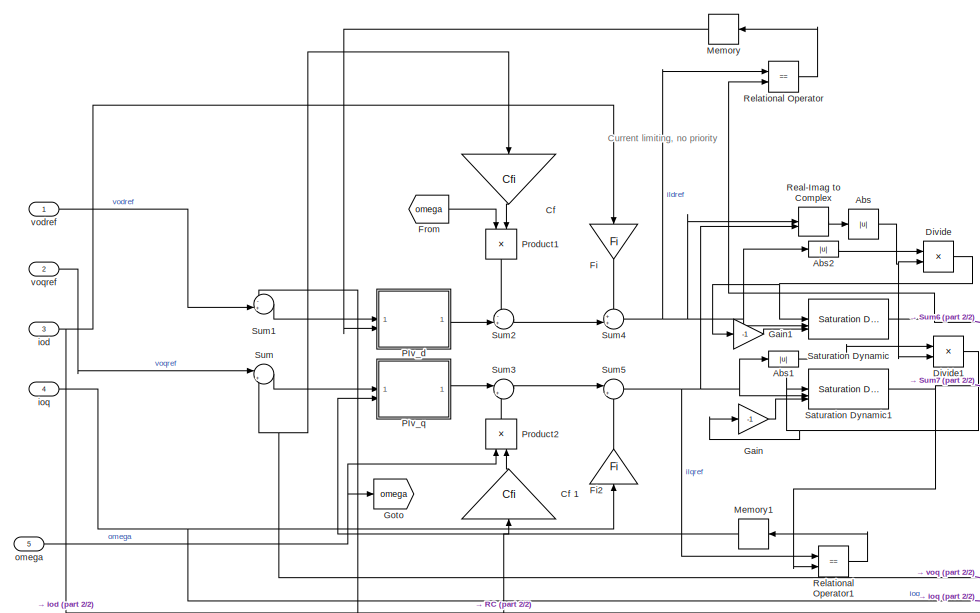
[diagram: intconv_GFM/VCC/dynamic_limiting - part 1/2, left side, full height]
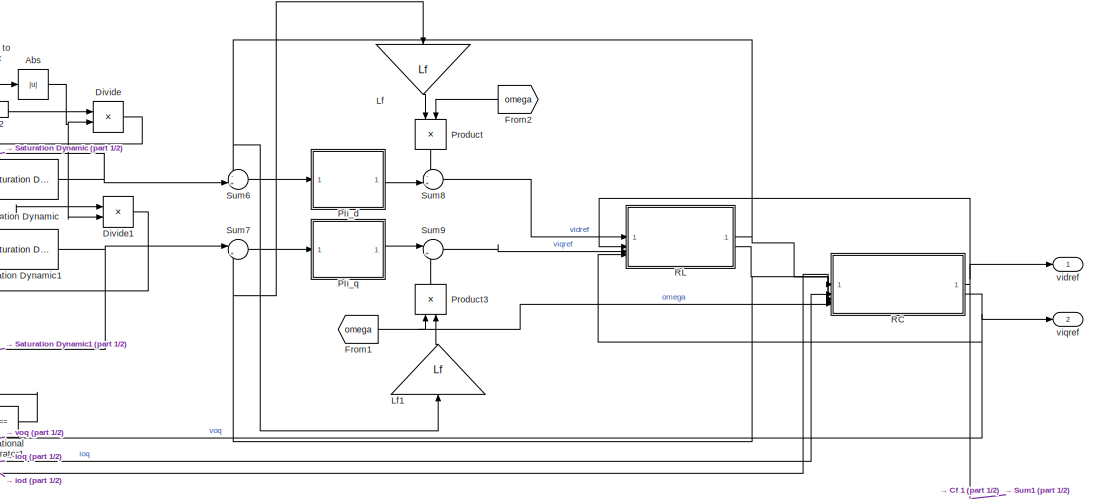
[diagram: intconv_GFM/VCC/dynamic_limiting - part 2/2, middle right region]
BLOCK [SubSystem] intconv_GFM/VCC/dynamic_limiting
  VariantControl = dynamic_limiting
BLOCK [Abs] intconv_GFM/VCC/dynamic_limiting/Abs
  SaturateOnIntegerOverflow = off
  ZeroCross = off
BLOCK [Abs] intconv_GFM/VCC/dynamic_limiting/Abs1
  SaturateOnIntegerOverflow = off
  ZeroCross = off
BLOCK [Abs] intconv_GFM/VCC/dynamic_limiting/Abs2
  SaturateOnIntegerOverflow = off
  ZeroCross = off
BLOCK [Gain] intconv_GFM/VCC/dynamic_limiting/Cf
  Gain = Cfi
  NameLocation = left
BLOCK [Gain] intconv_GFM/VCC/dynamic_limiting/Cf 1
  Gain = Cfi
  NameLocation = left
BLOCK [Product] intconv_GFM/VCC/dynamic_limiting/Divide
  Inputs = */
BLOCK [Product] intconv_GFM/VCC/dynamic_limiting/Divide1
  Inputs = */
BLOCK [Gain] intconv_GFM/VCC/dynamic_limiting/Fi
  Gain = Fi
  NameLocation = right
BLOCK [Gain] intconv_GFM/VCC/dynamic_limiting/Fi2
  Gain = Fi
  NameLocation = left
BLOCK [From] intconv_GFM/VCC/dynamic_limiting/From
  GotoTag = omega
BLOCK [From] intconv_GFM/VCC/dynamic_limiting/From1
  GotoTag = omega
BLOCK [From] intconv_GFM/VCC/dynamic_limiting/From2
  GotoTag = omega
  NameLocation = top
BLOCK [Gain] intconv_GFM/VCC/dynamic_limiting/Gain
  Gain = -1
BLOCK [Gain] intconv_GFM/VCC/dynamic_limiting/Gain1
  Gain = -1
BLOCK [Goto] intconv_GFM/VCC/dynamic_limiting/Goto
  GotoTag = omega
BLOCK [Gain] intconv_GFM/VCC/dynamic_limiting/Lf 
  Gain = Lf
  NameLocation = left
BLOCK [Gain] intconv_GFM/VCC/dynamic_limiting/Lf1
  Gain = Lf
  NameLocation = right
BLOCK [Memory] intconv_GFM/VCC/dynamic_limiting/Memory
  InitialCondition = 1
  LinearizeMemory = on
BLOCK [Memory] intconv_GFM/VCC/dynamic_limiting/Memory1
  InitialCondition = 1
  LinearizeMemory = on
BLOCK [SubSystem] intconv_GFM/VCC/dynamic_limiting/PIi_d
BLOCK [Gain] intconv_GFM/VCC/dynamic_limiting/PIi_d/Gain
  Gain = Kpc
BLOCK [Gain] intconv_GFM/VCC/dynamic_limiting/PIi_d/Gain1
  Gain = Kic
BLOCK [Integrator] intconv_GFM/VCC/dynamic_limiting/PIi_d/I
  InitialCondition = op_VCVSC.op.States(6).x'
BLOCK [Inport] intconv_GFM/VCC/dynamic_limiting/PIi_d/In1
BLOCK [Outport] intconv_GFM/VCC/dynamic_limiting/PIi_d/Out1
BLOCK [Sum] intconv_GFM/VCC/dynamic_limiting/PIi_d/Sum10
  Inputs = |++
BLOCK [SubSystem] intconv_GFM/VCC/dynamic_limiting/PIi_q
BLOCK [Gain] intconv_GFM/VCC/dynamic_limiting/PIi_q/Gain
  Gain = Kpc
BLOCK [Gain] intconv_GFM/VCC/dynamic_limiting/PIi_q/Gain1
  Gain = Kic
BLOCK [Integrator] intconv_GFM/VCC/dynamic_limiting/PIi_q/I
  InitialCondition = op_VCVSC.op.States(7).x'
BLOCK [Inport] intconv_GFM/VCC/dynamic_limiting/PIi_q/In1
BLOCK [Outport] intconv_GFM/VCC/dynamic_limiting/PIi_q/Out1
BLOCK [Sum] intconv_GFM/VCC/dynamic_limiting/PIi_q/Sum10
  Inputs = |++
BLOCK [SubSystem] intconv_GFM/VCC/dynamic_limiting/PIv_d
BLOCK [Gain] intconv_GFM/VCC/dynamic_limiting/PIv_d/Gain
  Gain = Kpv
BLOCK [Gain] intconv_GFM/VCC/dynamic_limiting/PIv_d/Gain1
  Gain = Kiv
BLOCK [Integrator] intconv_GFM/VCC/dynamic_limiting/PIv_d/I
  InitialCondition = op_VCVSC.op.States(8).x'
BLOCK [Inport] intconv_GFM/VCC/dynamic_limiting/PIv_d/In1
BLOCK [Inport] intconv_GFM/VCC/dynamic_limiting/PIv_d/In2
  Port = 2
BLOCK [Outport] intconv_GFM/VCC/dynamic_limiting/PIv_d/Out1
BLOCK [Product] intconv_GFM/VCC/dynamic_limiting/PIv_d/Product
BLOCK [Sum] intconv_GFM/VCC/dynamic_limiting/PIv_d/Sum10
  Inputs = |++
BLOCK [SubSystem] intconv_GFM/VCC/dynamic_limiting/PIv_q
BLOCK [Gain] intconv_GFM/VCC/dynamic_limiting/PIv_q/Gain
  Gain = Kpv
BLOCK [Gain] intconv_GFM/VCC/dynamic_limiting/PIv_q/Gain1
  Gain = Kiv
BLOCK [Integrator] intconv_GFM/VCC/dynamic_limiting/PIv_q/I
  InitialCondition = op_VCVSC.op.States(9).x'
BLOCK [Inport] intconv_GFM/VCC/dynamic_limiting/PIv_q/In1
BLOCK [Inport] intconv_GFM/VCC/dynamic_limiting/PIv_q/In2
  Port = 2
BLOCK [Outport] intconv_GFM/VCC/dynamic_limiting/PIv_q/Out1
BLOCK [Product] intconv_GFM/VCC/dynamic_limiting/PIv_q/Product
BLOCK [Sum] intconv_GFM/VCC/dynamic_limiting/PIv_q/Sum10
  Inputs = |++
BLOCK [Product] intconv_GFM/VCC/dynamic_limiting/Product
  NameLocation = left
BLOCK [Product] intconv_GFM/VCC/dynamic_limiting/Product1
  NameLocation = left
BLOCK [Product] intconv_GFM/VCC/dynamic_limiting/Product2
  NameLocation = right
BLOCK [Product] intconv_GFM/VCC/dynamic_limiting/Product3
  NameLocation = right
BLOCK [SubSystem] intconv_GFM/VCC/dynamic_limiting/RC
  LabelModeActiveChoice = dynamic
  Variant = on
  VariantControlMode = label
BLOCK [SubSystem] intconv_GFM/VCC/dynamic_limiting/RC/dynamic
  VariantControl = dynamic
BLOCK [Gain] intconv_GFM/VCC/dynamic_limiting/RC/dynamic/Gain1
  Gain = iR
  NameLocation = top
BLOCK [Gain] intconv_GFM/VCC/dynamic_limiting/RC/dynamic/Gain2
  Gain = iR
  NameLocation = top
BLOCK [Gain] intconv_GFM/VCC/dynamic_limiting/RC/dynamic/Gain3
  Gain = C
  NameLocation = right
BLOCK [Gain] intconv_GFM/VCC/dynamic_limiting/RC/dynamic/Gain4
  Gain = C
  NameLocation = left
BLOCK [Gain] intconv_GFM/VCC/dynamic_limiting/RC/dynamic/Gain5
  Gain = iC*omegab
BLOCK [Gain] intconv_GFM/VCC/dynamic_limiting/RC/dynamic/Gain6
  Gain = iC*omegab
BLOCK [Product] intconv_GFM/VCC/dynamic_limiting/RC/dynamic/Product
BLOCK [Product] intconv_GFM/VCC/dynamic_limiting/RC/dynamic/Product1
  NameLocation = right
BLOCK [Sum] intconv_GFM/VCC/dynamic_limiting/RC/dynamic/Sum10
  Inputs = |-++
BLOCK [Sum] intconv_GFM/VCC/dynamic_limiting/RC/dynamic/Sum11
  Inputs = -+|
BLOCK [Sum] intconv_GFM/VCC/dynamic_limiting/RC/dynamic/Sum12
  Inputs = |+-
BLOCK [Sum] intconv_GFM/VCC/dynamic_limiting/RC/dynamic/Sum13
  Inputs = -+-|
BLOCK [Inport] intconv_GFM/VCC/dynamic_limiting/RC/dynamic/i_d_in
  Port = 2
BLOCK [Inport] intconv_GFM/VCC/dynamic_limiting/RC/dynamic/i_d_out
  Port = 3
BLOCK [Inport] intconv_GFM/VCC/dynamic_limiting/RC/dynamic/i_q_in
  Port = 4
BLOCK [Inport] intconv_GFM/VCC/dynamic_limiting/RC/dynamic/i_q_out
  Port = 5
BLOCK [Inport] intconv_GFM/VCC/dynamic_limiting/RC/dynamic/omega
BLOCK [Outport] intconv_GFM/VCC/dynamic_limiting/RC/dynamic/v_d
BLOCK [Outport] intconv_GFM/VCC/dynamic_limiting/RC/dynamic/v_q
  Port = 2
BLOCK [Integrator] intconv_GFM/VCC/dynamic_limiting/RC/dynamic/vd
  InitialCondition = op_VCVSC.op.States(10).x'
BLOCK [Integrator] intconv_GFM/VCC/dynamic_limiting/RC/dynamic/vq
  InitialCondition = op_VCVSC.op.States(11).x'
BLOCK [Inport] intconv_GFM/VCC/dynamic_limiting/RC/i_d_in
BLOCK [Inport] intconv_GFM/VCC/dynamic_limiting/RC/i_d_out
  Port = 2
BLOCK [Inport] intconv_GFM/VCC/dynamic_limiting/RC/i_q_in
  Port = 3
BLOCK [Inport] intconv_GFM/VCC/dynamic_limiting/RC/i_q_out
  Port = 4
BLOCK [Inport] intconv_GFM/VCC/dynamic_limiting/RC/omega
  Port = 5
BLOCK [SubSystem] intconv_GFM/VCC/dynamic_limiting/RC/static
  VariantControl = static
BLOCK [SubSystem] intconv_GFM/VCC/dynamic_limiting/RC/static omega
  VariantControl = static omega
BLOCK [Gain] intconv_GFM/VCC/dynamic_limiting/RC/static omega/Gain
  Gain = 1./(iR.^2+C.^2)
BLOCK [Gain] intconv_GFM/VCC/dynamic_limiting/RC/static omega/Gain2
  Gain = 1./(iR.^2+C.^2)
BLOCK [Gain] intconv_GFM/VCC/dynamic_limiting/RC/static omega/Gain3
  Gain = iR
BLOCK [Gain] intconv_GFM/VCC/dynamic_limiting/RC/static omega/Gain4
  Gain = C
BLOCK [Gain] intconv_GFM/VCC/dynamic_limiting/RC/static omega/Gain5
  Gain = iR
BLOCK [Gain] intconv_GFM/VCC/dynamic_limiting/RC/static omega/Gain6
  Gain = C
BLOCK [Sum] intconv_GFM/VCC/dynamic_limiting/RC/static omega/Sum
  Inputs = |++
BLOCK [Sum] intconv_GFM/VCC/dynamic_limiting/RC/static omega/Sum1
  Inputs = |+-
BLOCK [Sum] intconv_GFM/VCC/dynamic_limiting/RC/static omega/Sum2
  Inputs = |+-
BLOCK [Sum] intconv_GFM/VCC/dynamic_limiting/RC/static omega/Sum4
  Inputs = |-+
BLOCK [Inport] intconv_GFM/VCC/dynamic_limiting/RC/static omega/i_d_in
BLOCK [Inport] intconv_GFM/VCC/dynamic_limiting/RC/static omega/i_d_out
  Port = 2
BLOCK [Inport] intconv_GFM/VCC/dynamic_limiting/RC/static omega/i_q_in
  Port = 3
BLOCK [Inport] intconv_GFM/VCC/dynamic_limiting/RC/static omega/i_q_out
  Port = 4
BLOCK [Outport] intconv_GFM/VCC/dynamic_limiting/RC/static omega/v_d
BLOCK [Outport] intconv_GFM/VCC/dynamic_limiting/RC/static omega/v_q
  Port = 2
BLOCK [Constant] intconv_GFM/VCC/dynamic_limiting/RC/static/Constant
  Value = iR.^2
BLOCK [Constant] intconv_GFM/VCC/dynamic_limiting/RC/static/Constant1
BLOCK [Product] intconv_GFM/VCC/dynamic_limiting/RC/static/Divide
  Inputs = */
BLOCK [Gain] intconv_GFM/VCC/dynamic_limiting/RC/static/Gain
  Gain = C
BLOCK [Gain] intconv_GFM/VCC/dynamic_limiting/RC/static/Gain1
  Gain = iR
BLOCK [Gain] intconv_GFM/VCC/dynamic_limiting/RC/static/Gain2
  Gain = iR
BLOCK [Product] intconv_GFM/VCC/dynamic_limiting/RC/static/Product
BLOCK [Product] intconv_GFM/VCC/dynamic_limiting/RC/static/Product1
BLOCK [Product] intconv_GFM/VCC/dynamic_limiting/RC/static/Product2
BLOCK [Product] intconv_GFM/VCC/dynamic_limiting/RC/static/Product3
BLOCK [Product] intconv_GFM/VCC/dynamic_limiting/RC/static/Product4
BLOCK [Product] intconv_GFM/VCC/dynamic_limiting/RC/static/Product5
BLOCK [Sum] intconv_GFM/VCC/dynamic_limiting/RC/static/Sum
  Inputs = |++
BLOCK [Sum] intconv_GFM/VCC/dynamic_limiting/RC/static/Sum1
  Inputs = |-+
BLOCK [Sum] intconv_GFM/VCC/dynamic_limiting/RC/static/Sum2
  Inputs = |+-
BLOCK [Sum] intconv_GFM/VCC/dynamic_limiting/RC/static/Sum3
  Inputs = |++
BLOCK [Sum] intconv_GFM/VCC/dynamic_limiting/RC/static/Sum4
  Inputs = |-+
BLOCK [Inport] intconv_GFM/VCC/dynamic_limiting/RC/static/i_d_in
  Port = 2
BLOCK [Inport] intconv_GFM/VCC/dynamic_limiting/RC/static/i_d_out
  Port = 3
BLOCK [Inport] intconv_GFM/VCC/dynamic_limiting/RC/static/i_q_in
  Port = 4
BLOCK [Inport] intconv_GFM/VCC/dynamic_limiting/RC/static/i_q_out
  Port = 5
BLOCK [Inport] intconv_GFM/VCC/dynamic_limiting/RC/static/omega
BLOCK [Outport] intconv_GFM/VCC/dynamic_limiting/RC/static/v_d
BLOCK [Outport] intconv_GFM/VCC/dynamic_limiting/RC/static/v_q
  Port = 2
BLOCK [Outport] intconv_GFM/VCC/dynamic_limiting/RC/v_d
BLOCK [Outport] intconv_GFM/VCC/dynamic_limiting/RC/v_q
  Port = 2
BLOCK [SubSystem] intconv_GFM/VCC/dynamic_limiting/RL
  LabelModeActiveChoice = dynamic
  Variant = on
  VariantControlMode = label
BLOCK [SubSystem] intconv_GFM/VCC/dynamic_limiting/RL/dynamic
  PortSchema = {"entries":[{"content":{"sides":[{"content":{"connectorIds":["In1"]},"type":"ConnectorPlacement.EquallySpacedRectSide","uuid":"63966e24-f9e7-4b2d-b456-7f4ea5e3f230"},{"content":{"connectorIds":["In2","In3","In4","Out1","Out2"],"side":"RIGHT"},"type":"ConnectorPlacement.EquallySpacedRectSide","uuid":"ded6ef04-52fd-47df-8e49-cf16b827098d"},{"content":{"connectorIds":[],"side":"TOP"},"type":"Connecto...<+265ch>
  VariantControl = dynamic
BLOCK [From] intconv_GFM/VCC/dynamic_limiting/RL/dynamic/From
  GotoTag = omega_leader_VCVSC
BLOCK [Gain] intconv_GFM/VCC/dynamic_limiting/RL/dynamic/Gain1
  Gain = L
BLOCK [Gain] intconv_GFM/VCC/dynamic_limiting/RL/dynamic/Gain2
  Gain = R
BLOCK [Gain] intconv_GFM/VCC/dynamic_limiting/RL/dynamic/Gain3
  Gain = R
BLOCK [Gain] intconv_GFM/VCC/dynamic_limiting/RL/dynamic/Gain4
  Gain = L
BLOCK [Gain] intconv_GFM/VCC/dynamic_limiting/RL/dynamic/Gain5
  Gain = invL*omegab
BLOCK [Gain] intconv_GFM/VCC/dynamic_limiting/RL/dynamic/Gain7
  Gain = invL*omegab
BLOCK [Product] intconv_GFM/VCC/dynamic_limiting/RL/dynamic/Product
BLOCK [Product] intconv_GFM/VCC/dynamic_limiting/RL/dynamic/Product1
BLOCK [Sum] intconv_GFM/VCC/dynamic_limiting/RL/dynamic/Sum4
  Inputs = +-|
BLOCK [Sum] intconv_GFM/VCC/dynamic_limiting/RL/dynamic/Sum5
  Inputs = |-+
BLOCK [Sum] intconv_GFM/VCC/dynamic_limiting/RL/dynamic/Sum6
  Inputs = |++
BLOCK [Sum] intconv_GFM/VCC/dynamic_limiting/RL/dynamic/Sum7
  Inputs = -+|
BLOCK [Sum] intconv_GFM/VCC/dynamic_limiting/RL/dynamic/Sum8
  Inputs = |+-
BLOCK [Sum] intconv_GFM/VCC/dynamic_limiting/RL/dynamic/Sum9
  Inputs = -+|
BLOCK [Integrator] intconv_GFM/VCC/dynamic_limiting/RL/dynamic/i_d
  InitialCondition = op_VCVSC.op.States(12).x'
BLOCK [Integrator] intconv_GFM/VCC/dynamic_limiting/RL/dynamic/i_q
  InitialCondition = op_VCVSC.op.States(13).x'
BLOCK [Outport] intconv_GFM/VCC/dynamic_limiting/RL/dynamic/id
  IconDisplay = Signal name
BLOCK [Outport] intconv_GFM/VCC/dynamic_limiting/RL/dynamic/iq
  IconDisplay = Signal name
  Port = 2
BLOCK [Inport] intconv_GFM/VCC/dynamic_limiting/RL/dynamic/v_in_d
  IconDisplay = Signal name
BLOCK [Inport] intconv_GFM/VCC/dynamic_limiting/RL/dynamic/v_in_q
  IconDisplay = Signal name
  Port = 3
BLOCK [Inport] intconv_GFM/VCC/dynamic_limiting/RL/dynamic/v_out_d
  Port = 2
BLOCK [Inport] intconv_GFM/VCC/dynamic_limiting/RL/dynamic/v_out_q
  Port = 4
BLOCK [Outport] intconv_GFM/VCC/dynamic_limiting/RL/id
BLOCK [Outport] intconv_GFM/VCC/dynamic_limiting/RL/iq
  IconDisplay = Signal name
  Port = 2
BLOCK [SubSystem] intconv_GFM/VCC/dynamic_limiting/RL/static
  VariantControl = static
BLOCK [Constant] intconv_GFM/VCC/dynamic_limiting/RL/static/Constant
  Value = R.^2
BLOCK [Constant] intconv_GFM/VCC/dynamic_limiting/RL/static/Constant1
BLOCK [Product] intconv_GFM/VCC/dynamic_limiting/RL/static/Divide
  Inputs = */
BLOCK [From] intconv_GFM/VCC/dynamic_limiting/RL/static/From
  GotoTag = omega_leader_VCVSC
  TagVisibility = global
BLOCK [Gain] intconv_GFM/VCC/dynamic_limiting/RL/static/Gain
  Gain = L
BLOCK [Gain] intconv_GFM/VCC/dynamic_limiting/RL/static/Gain1
  Gain = R
BLOCK [Gain] intconv_GFM/VCC/dynamic_limiting/RL/static/Gain2
  Gain = R
BLOCK [Product] intconv_GFM/VCC/dynamic_limiting/RL/static/Product
BLOCK [Product] intconv_GFM/VCC/dynamic_limiting/RL/static/Product1
BLOCK [Product] intconv_GFM/VCC/dynamic_limiting/RL/static/Product2
BLOCK [Product] intconv_GFM/VCC/dynamic_limiting/RL/static/Product3
BLOCK [Product] intconv_GFM/VCC/dynamic_limiting/RL/static/Product4
BLOCK [Product] intconv_GFM/VCC/dynamic_limiting/RL/static/Product5
BLOCK [Sum] intconv_GFM/VCC/dynamic_limiting/RL/static/Sum
  Inputs = |++
BLOCK [Sum] intconv_GFM/VCC/dynamic_limiting/RL/static/Sum1
  Inputs = |+-
BLOCK [Sum] intconv_GFM/VCC/dynamic_limiting/RL/static/Sum2
  Inputs = |+-
BLOCK [Sum] intconv_GFM/VCC/dynamic_limiting/RL/static/Sum3
  Inputs = |++
BLOCK [Sum] intconv_GFM/VCC/dynamic_limiting/RL/static/Sum4
  Inputs = |-+
BLOCK [Outport] intconv_GFM/VCC/dynamic_limiting/RL/static/id
BLOCK [Outport] intconv_GFM/VCC/dynamic_limiting/RL/static/iq
  IconDisplay = Signal name
  Port = 2
BLOCK [Inport] intconv_GFM/VCC/dynamic_limiting/RL/static/v_in_d
  IconDisplay = Signal name
BLOCK [Inport] intconv_GFM/VCC/dynamic_limiting/RL/static/v_in_q
  IconDisplay = Signal name
  Port = 3
BLOCK [Inport] intconv_GFM/VCC/dynamic_limiting/RL/static/v_out_d
  Port = 2
BLOCK [Inport] intconv_GFM/VCC/dynamic_limiting/RL/static/v_out_q
  Port = 4
BLOCK [SubSystem] intconv_GFM/VCC/dynamic_limiting/RL/static_omega
  VariantControl = static_omega
BLOCK [Gain] intconv_GFM/VCC/dynamic_limiting/RL/static_omega/Gain
  Gain = 1./(R.^2+L.^2)
BLOCK [Gain] intconv_GFM/VCC/dynamic_limiting/RL/static_omega/Gain2
  Gain = 1./(R.^2+L.^2)
BLOCK [Gain] intconv_GFM/VCC/dynamic_limiting/RL/static_omega/Gain3
  Gain = R
BLOCK [Gain] intconv_GFM/VCC/dynamic_limiting/RL/static_omega/Gain4
  Gain = L
BLOCK [Gain] intconv_GFM/VCC/dynamic_limiting/RL/static_omega/Gain5
  Gain = L
BLOCK [Gain] intconv_GFM/VCC/dynamic_limiting/RL/static_omega/Gain6
  Gain = R
BLOCK [Sum] intconv_GFM/VCC/dynamic_limiting/RL/static_omega/Sum
  Inputs = |++
BLOCK [Sum] intconv_GFM/VCC/dynamic_limiting/RL/static_omega/Sum1
  Inputs = |+-
BLOCK [Sum] intconv_GFM/VCC/dynamic_limiting/RL/static_omega/Sum2
  Inputs = |+-
BLOCK [Sum] intconv_GFM/VCC/dynamic_limiting/RL/static_omega/Sum3
  Inputs = |-+
BLOCK [Outport] intconv_GFM/VCC/dynamic_limiting/RL/static_omega/id
BLOCK [Outport] intconv_GFM/VCC/dynamic_limiting/RL/static_omega/iq
  IconDisplay = Signal name
  Port = 2
BLOCK [Inport] intconv_GFM/VCC/dynamic_limiting/RL/static_omega/v_in_d
  IconDisplay = Signal name
BLOCK [Inport] intconv_GFM/VCC/dynamic_limiting/RL/static_omega/v_in_q
  IconDisplay = Signal name
  Port = 3
BLOCK [Inport] intconv_GFM/VCC/dynamic_limiting/RL/static_omega/v_out_d
  Port = 2
BLOCK [Inport] intconv_GFM/VCC/dynamic_limiting/RL/static_omega/v_out_q
  Port = 4
BLOCK [Inport] intconv_GFM/VCC/dynamic_limiting/RL/v_in_d
  IconDisplay = Signal name
BLOCK [Inport] intconv_GFM/VCC/dynamic_limiting/RL/v_in_q
  IconDisplay = Signal name
  Port = 3
BLOCK [Inport] intconv_GFM/VCC/dynamic_limiting/RL/v_out_d
  Port = 2
BLOCK [Inport] intconv_GFM/VCC/dynamic_limiting/RL/v_out_q
  Port = 4
BLOCK [RealImagToComplex] intconv_GFM/VCC/dynamic_limiting/Real-Imag to Complex
BLOCK [RelationalOperator] intconv_GFM/VCC/dynamic_limiting/Relational Operator
  InputSameDT = off
  Operator = ==
  OutDataTypeStr = boolean
  RndMeth = Simplest
  ZeroCross = off
BLOCK [RelationalOperator] intconv_GFM/VCC/dynamic_limiting/Relational Operator1
  InputSameDT = off
  Operator = ==
  OutDataTypeStr = boolean
  RndMeth = Simplest
  ZeroCross = off
BLOCK [Reference] intconv_GFM/VCC/dynamic_limiting/Saturation Dynamic  REF=simulink/Discontinuities/Saturation
Dynamic
  SourceBlock = simulink/Discontinuities/Saturation\nDynamic
  SourceType = Saturation Dynamic
BLOCK [Reference] intconv_GFM/VCC/dynamic_limiting/Saturation Dynamic1  REF=simulink/Discontinuities/Saturation
Dynamic
  SourceBlock = simulink/Discontinuities/Saturation\nDynamic
  SourceType = Saturation Dynamic
BLOCK [Sum] intconv_GFM/VCC/dynamic_limiting/Sum
  Inputs = |+-
BLOCK [Sum] intconv_GFM/VCC/dynamic_limiting/Sum1
  Inputs = -+|
BLOCK [Sum] intconv_GFM/VCC/dynamic_limiting/Sum2
  Inputs = -+|
BLOCK [Sum] intconv_GFM/VCC/dynamic_limiting/Sum3
  Inputs = |++
BLOCK [Sum] intconv_GFM/VCC/dynamic_limiting/Sum4
  Inputs = ++|
BLOCK [Sum] intconv_GFM/VCC/dynamic_limiting/Sum5
  Inputs = |++
BLOCK [Sum] intconv_GFM/VCC/dynamic_limiting/Sum6
  Inputs = -+|
BLOCK [Sum] intconv_GFM/VCC/dynamic_limiting/Sum7
  Inputs = |+-
BLOCK [Sum] intconv_GFM/VCC/dynamic_limiting/Sum8
  Inputs = -+|
BLOCK [Sum] intconv_GFM/VCC/dynamic_limiting/Sum9
  Inputs = |++
BLOCK [Inport] intconv_GFM/VCC/dynamic_limiting/iod
  Port = 3
BLOCK [Inport] intconv_GFM/VCC/dynamic_limiting/ioq
  Port = 4
BLOCK [Inport] intconv_GFM/VCC/dynamic_limiting/omega
  Port = 5
BLOCK [Outport] intconv_GFM/VCC/dynamic_limiting/vidref
BLOCK [Outport] intconv_GFM/VCC/dynamic_limiting/viqref
  Port = 2
BLOCK [Inport] intconv_GFM/VCC/dynamic_limiting/vodref
BLOCK [Inport] intconv_GFM/VCC/dynamic_limiting/voqref
  Port = 2
BLOCK [Inport] intconv_GFM/VCC/iod
  Port = 3
BLOCK [Inport] intconv_GFM/VCC/ioq
  Port = 4
BLOCK [Inport] intconv_GFM/VCC/omega
  Port = 5
BLOCK [SubSystem] intconv_GFM/VCC/static
  VariantControl = static
BLOCK [Terminator] intconv_GFM/VCC/static/Terminator
BLOCK [Terminator] intconv_GFM/VCC/static/Terminator1
BLOCK [Terminator] intconv_GFM/VCC/static/Terminator2
BLOCK [Inport] intconv_GFM/VCC/static/iod
  Port = 3
BLOCK [Inport] intconv_GFM/VCC/static/ioq
  Port = 4
BLOCK [Inport] intconv_GFM/VCC/static/omega
  Port = 5
BLOCK [Outport] intconv_GFM/VCC/static/vidref
BLOCK [Outport] intconv_GFM/VCC/static/viqref
  Port = 2
BLOCK [Inport] intconv_GFM/VCC/static/vodref
BLOCK [Inport] intconv_GFM/VCC/static/voqref
  Port = 2
BLOCK [Outport] intconv_GFM/VCC/vidref
BLOCK [Outport] intconv_GFM/VCC/viqref
  Port = 2
BLOCK [Inport] intconv_GFM/VCC/vodref
BLOCK [Inport] intconv_GFM/VCC/voqref
  Port = 2
BLOCK [SubSystem] intconv_GFM/VI
  Commented = on
BLOCK [Gain] intconv_GFM/VI/Gain
  Gain = L
BLOCK [Gain] intconv_GFM/VI/Gain1
  Gain = R
BLOCK [Gain] intconv_GFM/VI/Gain2
  Gain = L
BLOCK [Gain] intconv_GFM/VI/Gain3
  Gain = R
BLOCK [Product] intconv_GFM/VI/Product
BLOCK [Product] intconv_GFM/VI/Product1
BLOCK [Sum] intconv_GFM/VI/Sum
  Inputs = -+|
BLOCK [Sum] intconv_GFM/VI/Sum1
  Inputs = |--
BLOCK [SubSystem] intconv_GFM/VI/WOF_d
  Commented = through
BLOCK [Gain] intconv_GFM/VI/WOF_d/Gain
  Gain = iTf
BLOCK [Integrator] intconv_GFM/VI/WOF_d/I
  InitialCondition = Grid_op_VCVSC.op.States(6).x'
  InitialConditionSource = external
BLOCK [Inport] intconv_GFM/VI/WOF_d/In1
BLOCK [Outport] intconv_GFM/VI/WOF_d/Out1
BLOCK [Sum] intconv_GFM/VI/WOF_d/Sum
  Inputs = +-|
BLOCK [Sum] intconv_GFM/VI/WOF_d/Sum4
  Inputs = |+-
BLOCK [SubSystem] intconv_GFM/VI/WOF_q
  Commented = through
BLOCK [Gain] intconv_GFM/VI/WOF_q/Gain
  Gain = iTf
BLOCK [Integrator] intconv_GFM/VI/WOF_q/I
  InitialCondition = Grid_op_VCVSC.op.States(7).x'
  InitialConditionSource = external
BLOCK [Inport] intconv_GFM/VI/WOF_q/In1
BLOCK [Outport] intconv_GFM/VI/WOF_q/Out1
BLOCK [Sum] intconv_GFM/VI/WOF_q/Sum
  Inputs = +-|
BLOCK [Sum] intconv_GFM/VI/WOF_q/Sum4
  Inputs = |+-
BLOCK [Inport] intconv_GFM/VI/id
  NameLocation = top
BLOCK [Inport] intconv_GFM/VI/iq
  NameLocation = top
  Port = 2
BLOCK [Inport] intconv_GFM/VI/omega
  NameLocation = top
  Port = 3
BLOCK [Outport] intconv_GFM/VI/vd
BLOCK [Outport] intconv_GFM/VI/vq
  Port = 2
BLOCK [Constant] intconv_GFM/Zero
  OutDataTypeStr = Inherit: Inherit via back propagation
  Value = 0
BLOCK [SubSystem] intconv_GFM/connect
BLOCK [Switch] intconv_GFM/connect/Switch
  Criteria = u2 > Threshold
  InputSameDT = off
  SaturateOnIntegerOverflow = off
  ZeroCross = off
BLOCK [Switch] intconv_GFM/connect/Switch1
  Criteria = u2 > Threshold
  InputSameDT = off
  SaturateOnIntegerOverflow = off
  ZeroCross = off
BLOCK [Constant] intconv_GFM/connect/Zero1
  OutDataTypeStr = Inherit: Inherit via back propagation
  Value = 0
  VectorParams1D = off
BLOCK [Constant] intconv_GFM/connect/Zero2
  OutDataTypeStr = Inherit: Inherit via back propagation
  Value = 0
  VectorParams1D = off
BLOCK [Inport] intconv_GFM/connect/connect
  Port = 3
BLOCK [Outport] intconv_GFM/connect/connected
  OutDataTypeStr = boolean
  Port = 3
BLOCK [Inport] intconv_GFM/connect/id
BLOCK [Outport] intconv_GFM/connect/id_real
BLOCK [Inport] intconv_GFM/connect/iq
  Port = 2
BLOCK [Outport] intconv_GFM/connect/iq_real
  Port = 2
BLOCK [Integrator] intconv_GFM/frame
  IgnoreLimit = on
  InitialCondition = Grid_op_VCVSC.States(19,:)
BLOCK [Outport] intconv_GFM/iac
BLOCK [Outport] intconv_GFM/idc
  Port = 2
BLOCK [SubSystem] intconv_GFM/trim_output
BLOCK [Outport] intconv_GFM/trim_output/Out1
BLOCK [Outport] intconv_GFM/trim_output/Out2
  Port = 2
BLOCK [Outport] intconv_GFM/trim_output/Out3
  Port = 3
BLOCK [Outport] intconv_GFM/trim_output/Out4
  Port = 4
BLOCK [Inport] intconv_GFM/trim_output/id
BLOCK [Inport] intconv_GFM/trim_output/iq
  Port = 2
BLOCK [Inport] intconv_GFM/trim_output/vd
  Port = 3
BLOCK [Inport] intconv_GFM/trim_output/vq
  Port = 4
BLOCK [Inport] intconv_GFM/vac
BLOCK [Inport] intconv_GFM/vdc
  Port = 2
BLOCK [Sum] intconv_GFM/vod
  Inputs = ++|
ANNOTATION intconv_GFM: do not rename this block, conditions to initialise the generator from PF result are set on this block's output
ANNOTATION intconv_GFM: port number 2
ANNOTATION intconv_GFM/RL out: 1) Add Subsystem or Model blocks as valid variant choices. 2) You cannot connect blocks at this level. At simulation, connectivity is automatically determined, based on the active variant and port name matching.
ANNOTATION intconv_GFM/VCC: 1) Add Subsystem or Model blocks as valid variant choices. 2) You cannot connect blocks at this level. At simulation, connectivity is automatically determined, based on the active variant and port name matching.
ANNOTATION intconv_GFM/VCC/dynamic/RC: 1) Add Subsystem or Model blocks as valid variant choices. 2) You cannot connect blocks at this level. At simulation, connectivity is automatically determined, based on the active variant and port name matching.
ANNOTATION intconv_GFM/VCC/dynamic/RL: 1) Add Subsystem or Model blocks as valid variant choices. 2) You cannot connect blocks at this level. At simulation, connectivity is automatically determined, based on the active variant and port name matching.
ANNOTATION intconv_GFM/VCC/dynamic_VC/RC: 1) Add Subsystem or Model blocks as valid variant choices. 2) You cannot connect blocks at this level. At simulation, connectivity is automatically determined, based on the active variant and port name matching.
ANNOTATION intconv_GFM/VCC/dynamic_limiting: Current limiting, no priority
ANNOTATION intconv_GFM/VCC/dynamic_limiting/RC: 1) Add Subsystem or Model blocks as valid variant choices. 2) You cannot connect blocks at this level. At simulation, connectivity is automatically determined, based on the active variant and port name matching.
ANNOTATION intconv_GFM/VCC/dynamic_limiting/RL: 1) Add Subsystem or Model blocks as valid variant choices. 2) You cannot connect blocks at this level. At simulation, connectivity is automatically determined, based on the active variant and port name matching.
CHART intconv_GFM/Gen_To_DC states=1 transitions=1
  STATE_LABEL 'eML_blk_kernel()'
  STATE_LABEL 'SCRIPT:\nfunction y = fcn(u, Nbuses_DC, block_buses_DC)\n\ny = zeros(1, Nbuses_DC);\nfor i=1:Nbuses_DC\n    y(i) = sum(u(block_buses_DC == i));\nend\n'
CHART  states=0 transitions=0
